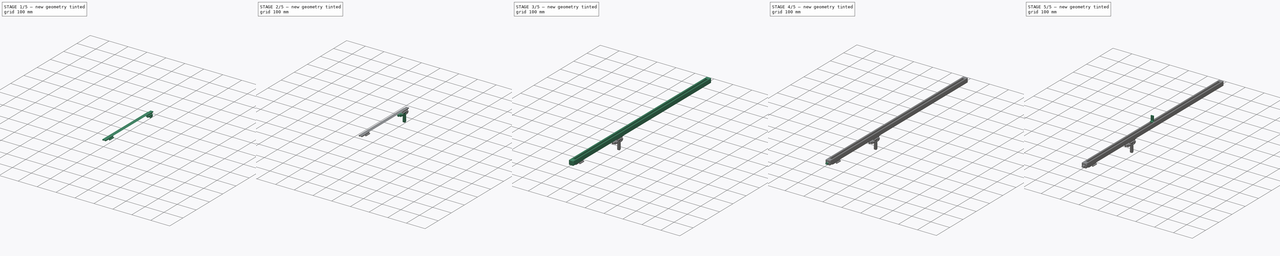
[diagram: build sequence overview — one tinted view per stage of 5, left to right]
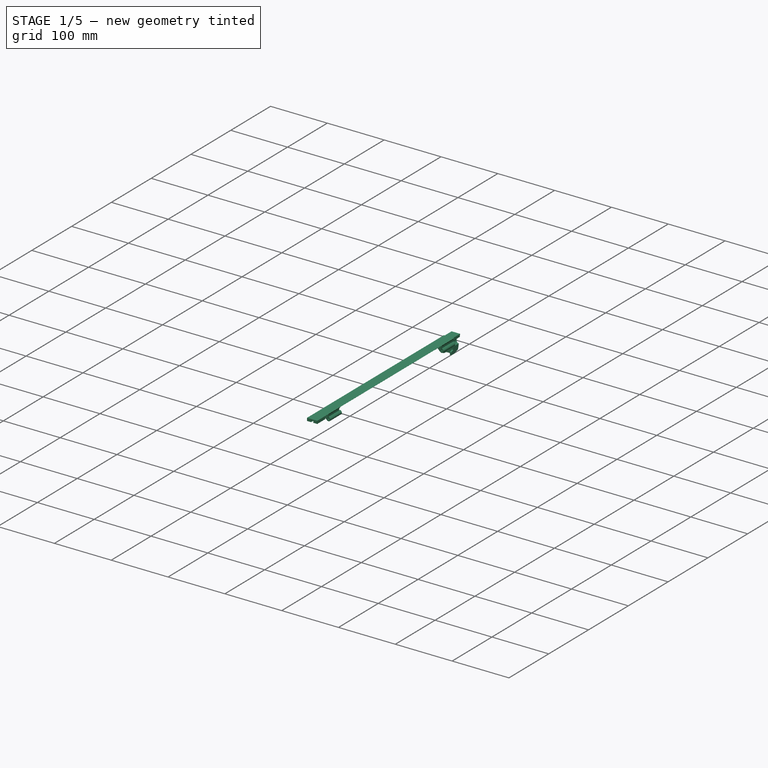
[diagram: stage 1 of 5 — iso view after this stage's code; geometry added in this stage tinted green]
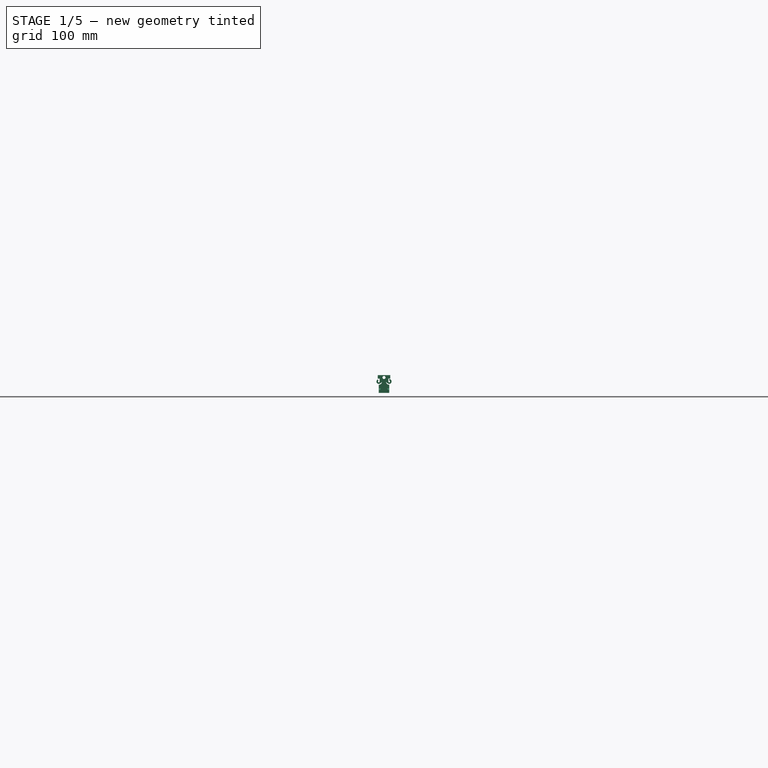
[diagram: stage 1 of 5 — front view after this stage's code; geometry added in this stage tinted green]
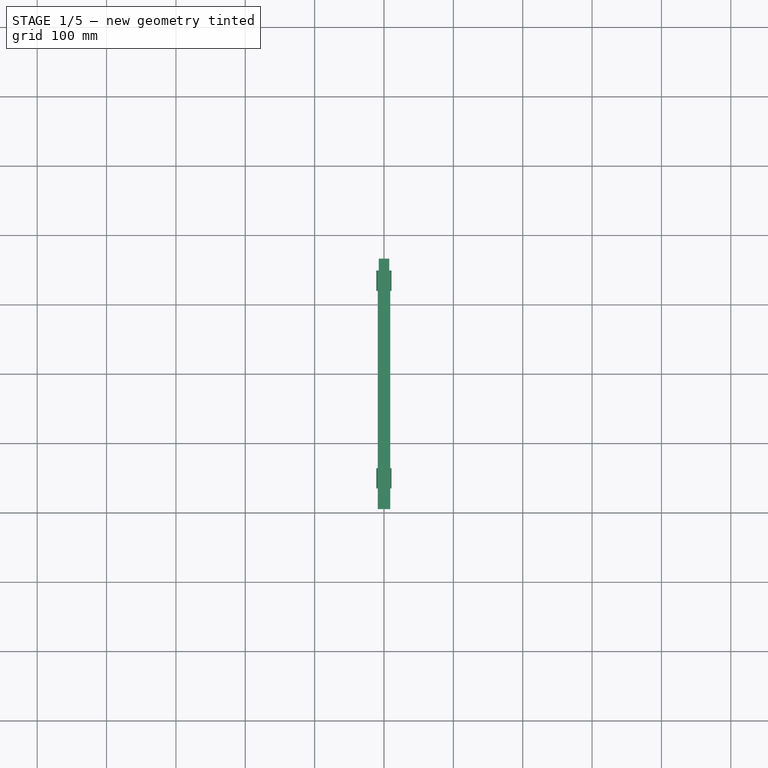
[diagram: stage 1 of 5 — top view after this stage's code; geometry added in this stage tinted green]
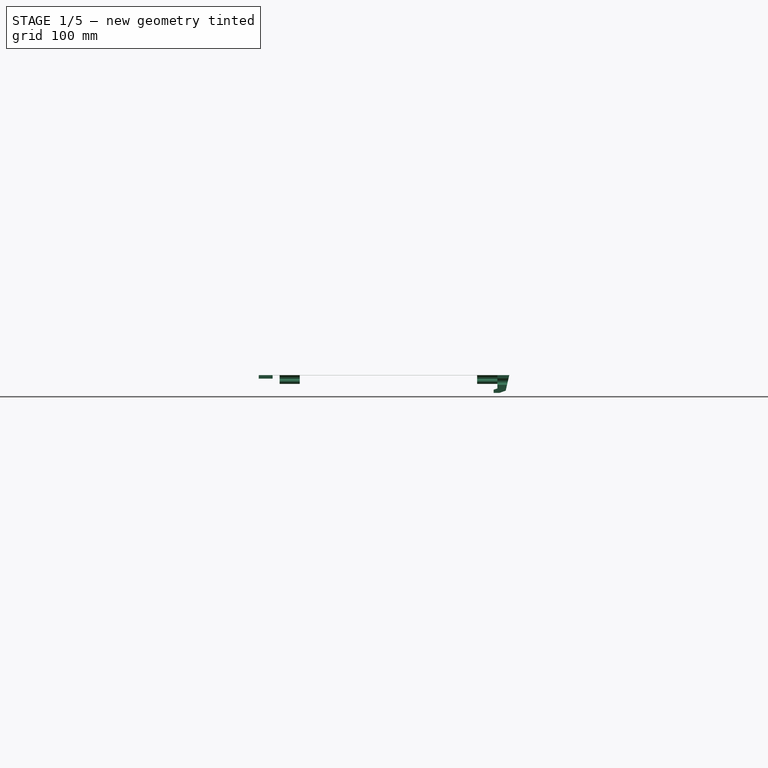
[diagram: stage 1 of 5 — right view after this stage's code; geometry added in this stage tinted green]
FCSTD DOCUMENT  (FreeCAD 0.20R29603 (Git))
Label: body_plastic_v3_rubberband
License: All rights reserved
LicenseURL: http://en.wikipedia.org/wiki/All_rights_reserved
objects: Sketcher::SketchObject×26, PartDesign::Pad×15, PartDesign::Pocket×9, PartDesign::Body×5, PartDesign::Fillet×5, PartDesign::ShapeBinder×4, PartDesign::Chamfer×3, Part::MultiFuse×2, Part::Mirroring×1, PartDesign::FeatureBase×1
note: 103 computed .brp shape members not serialized (recipe doc carries the construction recipe); baked Part::Feature solids carry a one-line shape summary decoded from their .brp

FEATURE [Sketcher::SketchObject] Sketch026  label="skHole"
  FullyConstrained = true
  MapMode = 5
  Placement = pos=(0,0,0) rot=(1,0,0;1.5708rad)
  Support = -> [XZ_Plane007]
  sketch-geometry (1):
    g0: Circle CenterX=0 CenterY=-26.65 CenterZ=0 NormalX=0 NormalY=0 NormalZ=1 AngleXU=0 Radius=2.2
  constraints (3):
    c: PointOnObject(g0,g-2)
    c: Diameter(g0) = 4.4
    c: DistanceY(g-1,g0) = -26.65
FEATURE [Sketcher::SketchObject] Sketch027  label="skVShape"
  AttachmentOffset = pos=(0,0,150.85) rot=(0,0,1;0rad)
  FullyConstrained = true
  MapMode = 5
  Placement = pos=(0,-150.85,-3.35e-14) rot=(1,0,0;1.5708rad)
  Support = -> [XZ_Plane007]
  sketch-geometry (19):
    g0: LineSegment StartX=0 StartY=-30 StartZ=0 EndX=4.24264 EndY=-34.2426 EndZ=0
    g1: LineSegment StartX=0 StartY=-30 StartZ=0 EndX=-4.24264 EndY=-34.2426 EndZ=0
    g2: LineSegment StartX=9 StartY=-23.2 StartZ=0 EndX=-9 EndY=-23.2 EndZ=0
    g3: ArcOfCircle CenterX=-7.5 CenterY=-32.4584 CenterZ=0 NormalX=0 NormalY=0 NormalZ=1 AngleXU=0 Radius=1.25 StartAngle=1.86293 EndAngle=6.29153
    g4: ArcOfCircle CenterX=7.5 CenterY=-32.4584 CenterZ=0 NormalX=0 NormalY=0 NormalZ=1 AngleXU=0 Radius=1.2 StartAngle=3.14159 EndAngle=7.77055
    g5: LineSegment StartX=6.3 StartY=-32.4584 StartZ=0 EndX=6.3 EndY=-26.4584 EndZ=0
    g6: LineSegment StartX=6.3 StartY=-26.4584 StartZ=0 EndX=9 EndY=-23.2 EndZ=0
    g7: LineSegment StartX=-6.25004 StartY=-32.448 StartZ=0 EndX=-6.3 EndY=-26.4584 EndZ=0
    g8: LineSegment StartX=-6.3 StartY=-26.4584 StartZ=0 EndX=-9 EndY=-23.2 EndZ=0
    g9: LineSegment StartX=4.24264 StartY=-34.2426 StartZ=0 EndX=5.43267 EndY=-35.1558 EndZ=0
    g10: LineSegment StartX=-5.43267 StartY=-35.1558 StartZ=0 EndX=-4.24264 EndY=-34.2426 EndZ=0
    g11: ArcOfCircle CenterX=-7.50246 CenterY=-32.4584 CenterZ=0 NormalX=0 NormalY=0 NormalZ=1 AngleXU=0 Radius=3.4 StartAngle=2.16098 EndAngle=5.36689
    g12: ArcOfCircle CenterX=7.50246 CenterY=-32.4584 CenterZ=0 NormalX=0 NormalY=0 NormalZ=1 AngleXU=0 Radius=3.4 StartAngle=4.05789 EndAngle=7.01244
    g13: LineSegment StartX=-7.86 StartY=-31.2613 StartZ=0 EndX=-8.14799 EndY=-30.3037 EndZ=0
    g14: LineSegment StartX=-8.14799 StartY=-30.3037 StartZ=0 EndX=-9.39462 EndY=-29.6335 EndZ=0
    g15: LineSegment StartX=7.6 StartY=-31.2626 StartZ=0 EndX=7.6 EndY=-28.8077 EndZ=0
    g16: LineSegment StartX=7.6 StartY=-28.8077 StartZ=0 EndX=8.8 EndY=-28.8077 EndZ=0
    g17: Circle CenterX=7.6 CenterY=-28.8077 CenterZ=0 NormalX=0 NormalY=0 NormalZ=1 AngleXU=0 Radius=2.5
    g18: LineSegment StartX=8.8 StartY=-28.8077 StartZ=0 EndX=10.0378 EndY=-30.1929 EndZ=0
  constraints (52):
    c: Distance(g0) = 6
    c: Coincident(g1,g0)
    c: Equal(g1,g0)
    c: Perpendicular(g1,g0)
    c: PointOnObject(g0,g-2)
    c: Horizontal(g0,g1)
    c: DistanceY(g-1,g0) = -30
    c: Coincident(g9,g0)
    c: Coincident(g10,g1)
    c: Symmetric(g2,g2,g-2)
    c: Distance(g2) = 18
    c: Distance(g0,g2) = 6.8
    c: Coincident(g6,g2)
    c: Coincident(g8,g2)
    c: Diameter(g3) = 2.5
    c: Tangent(g7,g3) = -1.5708
    c: Tangent(g5,g4) = 1.5708
    c: Symmetric(g4,g3,g-2)
    c: Coincident(g5,g6)
    c: Coincident(g7,g8)
    c: Symmetric(g5,g7,g-2)
    c: Vertical(g5)
    c: Coincident(g3,g13)
    c: Symmetric(g9,g10,g-2)
    c: Coincident(g14,g11)
    c: Coincident(g10,g11)
    c: Distance(g9) = 1.5
    c: Angle(g9,g0) = 3.01069
    c: Distance(g3,g7) = 1.6
    c: Distance(g4,g3) = 15
    c: Coincident(g13,g14)
    c: Perpendicular(g3,g13)
    c: Distance(g13) = 1
    c: Equal(g12,g11)
    c: Diameter(g4) = 2.4
    c: Tangent(g9,g12) = -1.5708
    c: Distance(g5) = 6
    c: Vertical(g15)
    c: Coincident(g15,g16)
    c: Horizontal(g16)
    c: Coincident(g15,g4)
    c: Coincident(g17,g15)
    c: Tangent(g17,g6)
    c: Radius(g17) = 2.5
    c: Coincident(g18,g16)
    c: Radius(g12) = 3.4
    c: Tangent(g18,g12) = 1.5708
    c: Horizontal(g4,g12)
    c: Distance(g16) = 1.2
    c: Distance(g4,g5) = 1.3
    c: Horizontal(g11,g3)
    c: Angle(g14,g13) = 2.35619
FEATURE [PartDesign::Pad] Pad017  label="pdVShape"
  Direction = (0,-1,-2e-16)
  Length = 340
  Length2 = 10
  Placement = pos=(0,0,0) rot=(1,0,0;1.5708rad)
  Profile = -> Sketch027
  ReferenceAxis = -> Sketch027 [N_Axis]
  Type = 0
FEATURE [Sketcher::SketchObject] Sketch028  label="skSplitVShape"
  FullyConstrained = false
  MapMode = 5
  Placement = pos=(0,0,0) rot=(0.57735,0.57735,0.57735;2.0944rad)
  Support = -> [YZ_Plane007]
  sketch-geometry (8):
    g0: LineSegment StartX=-180.11 StartY=-78.5951 StartZ=0 EndX=-435.86 EndY=-78.5951 EndZ=0
    g1: LineSegment StartX=-435.86 StartY=-78.5951 StartZ=0 EndX=-435.86 EndY=-23.45 EndZ=0
    g2: LineSegment StartX=-435.86 StartY=-23.45 StartZ=0 EndX=-180.11 EndY=-23.45 EndZ=0
    g3: LineSegment StartX=-180.11 StartY=-23.45 StartZ=0 EndX=-180.11 EndY=-78.5951 EndZ=0
    g4: LineSegment StartX=-464.86 StartY=-77.7275 StartZ=0 EndX=-530.283 EndY=-77.7275 EndZ=0
    g5: LineSegment StartX=-530.283 StartY=-77.7275 StartZ=0 EndX=-530.283 EndY=-23.45 EndZ=0
    g6: LineSegment StartX=-530.283 StartY=-23.45 StartZ=0 EndX=-464.86 EndY=-23.45 EndZ=0
    g7: LineSegment StartX=-464.86 StartY=-23.45 StartZ=0 EndX=-464.86 EndY=-77.7275 EndZ=0
  constraints (21):
    c: Coincident(g0,g1)
    c: Coincident(g1,g2)
    c: Coincident(g2,g3)
    c: Coincident(g3,g0)
    c: Horizontal(g0)
    c: Horizontal(g2)
    c: Vertical(g1)
    c: Vertical(g3)
    c: Distance(g2) = 255.75
    c: DistanceY(g-1,g2) = -23.45
    c: DistanceX(g-2,g2) = -180.11
    c: Coincident(g4,g5)
    c: Coincident(g5,g6)
    c: Coincident(g6,g7)
    c: Coincident(g7,g4)
    c: Horizontal(g4)
    c: Horizontal(g6)
    c: Vertical(g5)
    c: Vertical(g7)
    c: Horizontal(g6,g1)
    c: Distance(g6,g1) = 29
FEATURE [PartDesign::Pocket] Pocket004  label="pkSplitVShape"
  BaseFeature = -> Pad017
  Direction = (-1,2e-16,-3e-16)
  Length = 26
  Length2 = 5
  Midplane = true
  Placement = pos=(0,0,0) rot=(1,0,0;1.5708rad)
  Profile = -> Sketch028
  ReferenceAxis = -> Sketch028 [N_Axis]
  Type = 0
FEATURE [Sketcher::SketchObject] Sketch031  label="skStopper"
  ExternalGeometry = -> [Pocket004]
  FullyConstrained = false
  MapMode = 5
  Placement = pos=(0,0,0) rot=(0.57735,0.57735,0.57735;2.0944rad)
  Support = -> [YZ_Plane007]
  sketch-geometry (7):
    g0: LineSegment StartX=-156.254 StartY=-44.2669 StartZ=0 EndX=-150.85 EndY=-42.4029 EndZ=0
    g1: LineSegment StartX=-147.958 StartY=-48.8692 StartZ=0 EndX=-156.254 EndY=-48.8692 EndZ=0
    g2: LineSegment StartX=-156.254 StartY=-48.8692 StartZ=0 EndX=-156.254 EndY=-44.2669 EndZ=0
    g3: LineSegment StartX=-138.926 StartY=-45.6486 StartZ=0 EndX=-147.958 EndY=-48.8692 EndZ=0
    g4: LineSegment StartX=-133.706 StartY=-23.2 StartZ=0 EndX=-150.85 EndY=-23.2 EndZ=0
    g5: LineSegment StartX=-150.85 StartY=-42.4029 StartZ=0 EndX=-150.85 EndY=-23.2 EndZ=0
    g6: LineSegment StartX=-138.926 StartY=-45.6486 StartZ=0 EndX=-133.706 EndY=-23.2 EndZ=0
  constraints (13):
    c: Coincident(g3,g1)
    c: Coincident(g1,g2)
    c: Coincident(g2,g0)
    c: Horizontal(g1)
    c: Vertical(g2)
    c: DistanceY(g1) = -48.8692
    c: Coincident(g3,g6)
    c: Horizontal(g4)
    c: Coincident(g0,g5)
    c: Vertical(g5)
    c: Coincident(g6,g4)
    c: Coincident(g5,g4)
    c: Coincident(g4,g-3)
FEATURE [PartDesign::Pad] Pad020  label="pdStopper"
  BaseFeature = -> Pocket004
  Direction = (1,-2e-16,3e-16)
  Length = 15
  Length2 = 10
  Midplane = true
  Placement = pos=(0,0,0) rot=(1,0,0;1.5708rad)
  Profile = -> Sketch031
  ReferenceAxis = -> Sketch031 [N_Axis]
  Type = 0
FEATURE [PartDesign::Body] Body008  label="Rods"
  Group = -> [Sketch029,Pad018,Sketch030,Pad019,Sketch037,Pad023,Sketch038,Pad024,Fillet002]
  Origin = -> Origin008
  Tip = -> Fillet002
FEATURE [Sketcher::SketchObject] Sketch039  label="skStopperBroche"
  AttachmentOffset = pos=(0,0,-41) rot=(0,0,1;0rad)
  ExternalGeometry = -> [Sketch031]
  FullyConstrained = false
  MapMode = 5
  Placement = pos=(0,0,-41) rot=(0,0,1;0rad)
  Support = -> [XY_Plane007]
  sketch-geometry (4):
    g0: LineSegment StartX=4.65 StartY=-150.85 StartZ=0 EndX=-4.65 EndY=-150.85 EndZ=0
    g1: LineSegment StartX=-4.65 StartY=-150.85 StartZ=0 EndX=-5.29758 EndY=-156.297 EndZ=0
    g2: LineSegment StartX=-5.29758 StartY=-156.297 StartZ=0 EndX=5.29758 EndY=-156.297 EndZ=0
    g3: LineSegment StartX=5.29758 StartY=-156.297 StartZ=0 EndX=4.65 EndY=-150.85 EndZ=0
  constraints (8):
    c: Coincident(g0,g1)
    c: Coincident(g1,g2)
    c: Coincident(g2,g3)
    c: Coincident(g3,g0)
    c: Symmetric(g0,g0,g-2)
    c: PointOnObject(g-3,g0)
    c: Distance(g0) = 9.3
    c: Symmetric(g1,g2,g-2)
FEATURE [PartDesign::Pocket] Pocket009  label="pkStopperBroche"
  BaseFeature = -> Pad020
  Direction = (0,0,-1)
  Length = 10
  Length2 = 5
  Placement = pos=(0,0,0) rot=(1,0,0;1.5708rad)
  Profile = -> Sketch039
  ReferenceAxis = -> Sketch039 [N_Axis]
  Type = 0
FEATURE [PartDesign::Pad] Pad021  label="pdHalfFixer"
  BaseFeature = -> Pocket009
  Direction = (0,-1,-2e-16)
  Length = 20
  Length2 = 10
  Placement = pos=(0,0,0) rot=(1,0,0;1.5708rad)
  Profile = -> Sketch032
  ReferenceAxis = -> Sketch032 [N_Axis]
  Type = 0
FEATURE [PartDesign::Pocket] Pocket005  label="pkHole"
  BaseFeature = -> Pad021
  Direction = (0,1,2e-16)
  Length = 5
  Length2 = 5
  Midplane = true
  Placement = pos=(0,0,0) rot=(1,0,0;1.5708rad)
  Profile = -> Sketch026
  ReferenceAxis = -> Sketch026 [N_Axis]
  Type = 1
FEATURE [Sketcher::SketchObject] Sketch040
  ExternalGeometry = -> [Pocket009]
  FullyConstrained = false
  MapMode = 5
  Placement = pos=(0,-150.85,6.7e-14) rot=(-1,0,0;1.5708rad)
  Support = -> [Pocket009]
  sketch-geometry (2):
    g0: Circle CenterX=-7.50246 CenterY=32.4584 CenterZ=0 NormalX=0 NormalY=0 NormalZ=1 AngleXU=0 Radius=4.63805
    g1: Circle CenterX=7.50246 CenterY=32.4584 CenterZ=0 NormalX=0 NormalY=0 NormalZ=1 AngleXU=0 Radius=4.63805
  constraints (3):
    c: Coincident(g0,g-4)
    c: Coincident(g1,g-3)
    c: Equal(g1,g0)
FEATURE [PartDesign::Pocket] Pocket010
  BaseFeature = -> Pocket005
  Direction = (0,-1,4e-16)
  Length = 20
  Length2 = 5
  Placement = pos=(0,0,0) rot=(1,0,0;1.5708rad)
  Profile = -> Sketch040
  ReferenceAxis = -> Sketch040 [N_Axis]
  Refine = true
  Reversed = true
  Type = 0
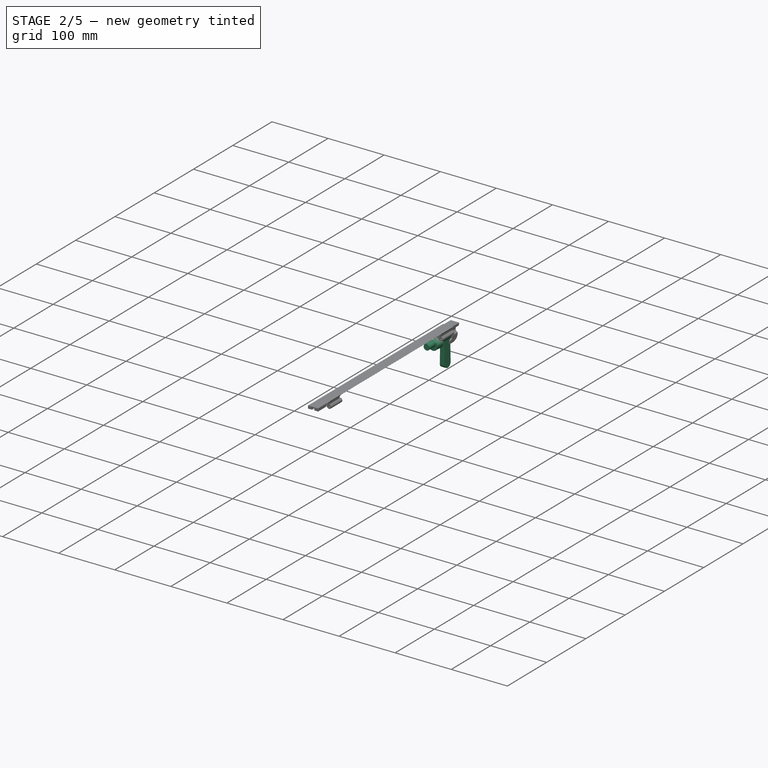
[diagram: stage 2 of 5 — iso view after this stage's code; geometry added in this stage tinted green]
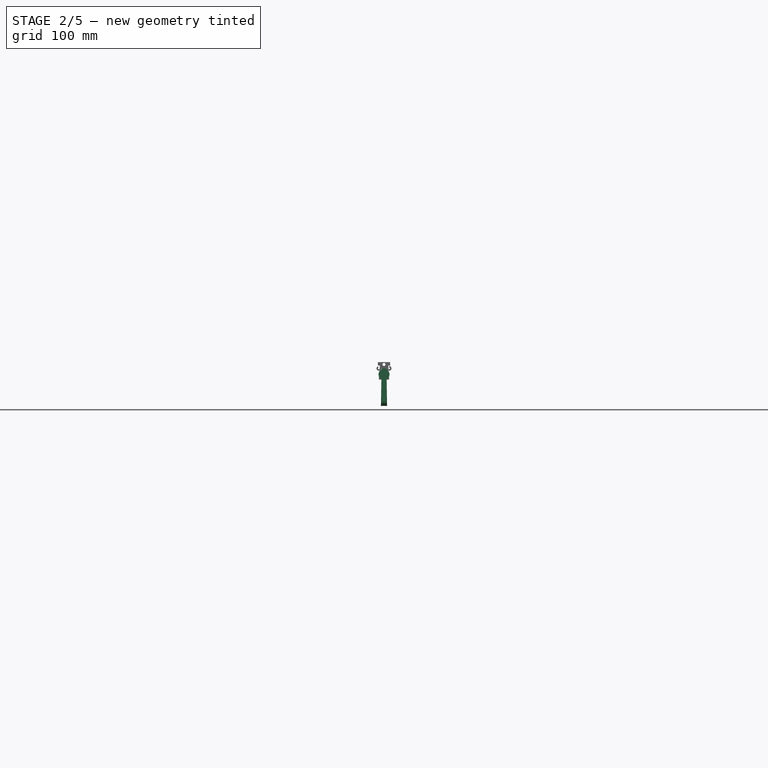
[diagram: stage 2 of 5 — front view after this stage's code; geometry added in this stage tinted green]
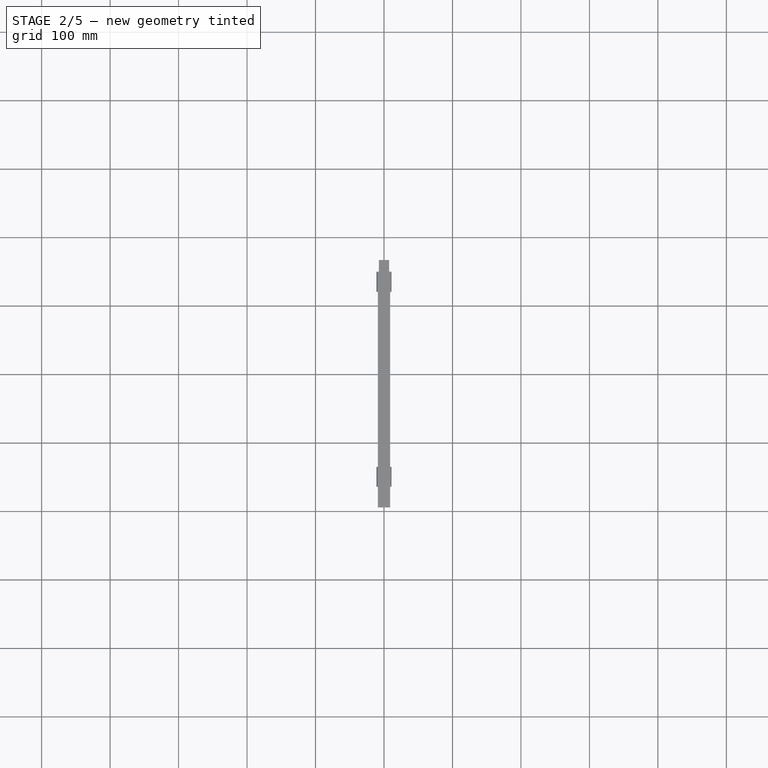
[diagram: stage 2 of 5 — top view after this stage's code; geometry added in this stage tinted green]
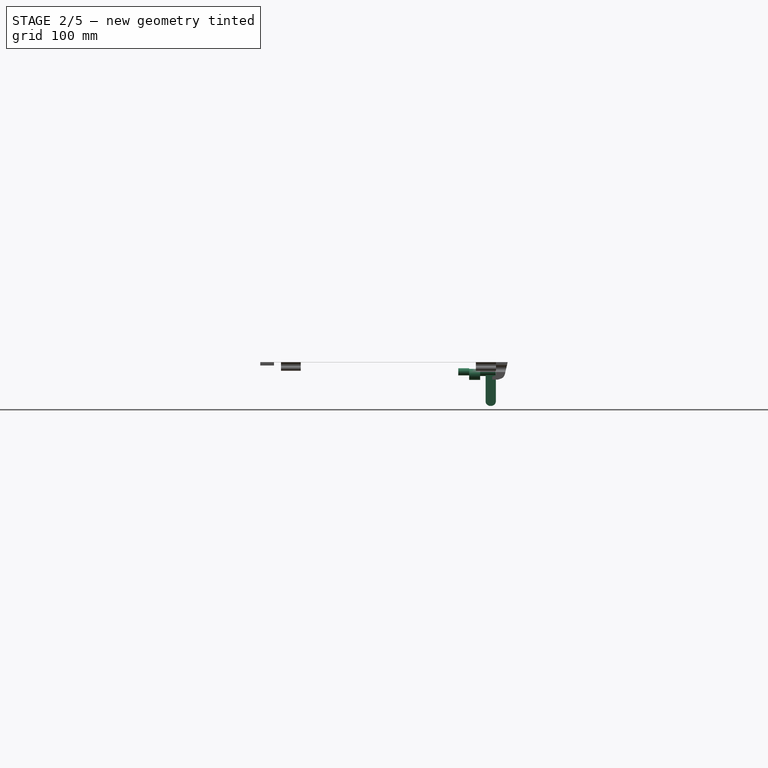
[diagram: stage 2 of 5 — right view after this stage's code; geometry added in this stage tinted green]
FEATURE [Sketcher::SketchObject] Sketch029  label="sk16"
  AttachmentOffset = pos=(0,0,174) rot=(0,0,1;0rad)
  FullyConstrained = false
  MapMode = 5
  Placement = pos=(0,-174,-3.86e-14) rot=(1,0,0;1.5708rad)
  Support = -> [XZ_Plane008]
  sketch-geometry (1):
    g0: Circle CenterX=0 CenterY=-41.1311 CenterZ=0 NormalX=0 NormalY=0 NormalZ=1 AngleXU=0 Radius=8
  constraints (2):
    c: PointOnObject(g0,g-2)
    c: Diameter(g0) = 16
FEATURE [PartDesign::Pad] Pad018
  Direction = (0,-1,-2e-16)
  Length = 16
  Length2 = 10
  Placement = pos=(0,0,0) rot=(1,0,0;1.5708rad)
  Profile = -> Sketch029
  ReferenceAxis = -> Sketch029 [N_Axis]
  Type = 0
FEATURE [Sketcher::SketchObject] Sketch030  label="sk10.5"
  FullyConstrained = false
  MapMode = 5
  Placement = pos=(0,-190,0) rot=(1,0,0;1.5708rad)
  Support = -> [Pad018]
  sketch-geometry (1):
    g0: Circle CenterX=0 CenterY=-37.4369 CenterZ=0 NormalX=0 NormalY=0 NormalZ=1 AngleXU=0 Radius=5.25
  constraints (2):
    c: PointOnObject(g0,g-2)
    c: Diameter(g0) = 10.5
FEATURE [PartDesign::Pad] Pad019
  BaseFeature = -> Pad018
  Direction = (0,-1,2e-16)
  Length = 16
  Length2 = 10
  Placement = pos=(0,0,0) rot=(1,0,0;1.5708rad)
  Profile = -> Sketch030
  ReferenceAxis = -> Sketch030 [N_Axis]
  Type = 0
FEATURE [PartDesign::Body] Body006  label="BodyRod"
  BaseFeature = -> Fusion
  Group = -> [BaseFeature,Sketch023,Sketch024,Pad016,Pocket003,Fillet001,Sketch033,Pad022,Sketch034,Pocket006,Sketch035,Pocket007,Sketch036,Pocket008,Chamfer003]
  Origin = -> Origin006
  Tip = -> Chamfer003
FEATURE [Sketcher::SketchObject] Sketch037
  AttachmentOffset = pos=(0,0,151) rot=(0,0,1;0rad)
  FullyConstrained = true
  MapMode = 5
  Placement = pos=(0,-151,-3.35e-14) rot=(1,0,0;1.5708rad)
  Support = -> [XZ_Plane008]
  sketch-geometry (1):
    g0: Circle CenterX=0 CenterY=-37.92 CenterZ=0 NormalX=0 NormalY=0 NormalZ=1 AngleXU=0 Radius=5.55
  constraints (3):
    c: Diameter(g0) = 11.1
    c: PointOnObject(g0,g-2)
    c: DistanceY(g-1,g0) = -37.92
FEATURE [PartDesign::Pad] Pad023
  BaseFeature = -> Pad019
  Direction = (0,-1,-2e-16)
  Length = 23
  Length2 = 10
  Placement = pos=(0,0,0) rot=(1,0,0;1.5708rad)
  Profile = -> Sketch037
  ReferenceAxis = -> Sketch037 [N_Axis]
  Type = 0
FEATURE [Sketcher::SketchObject] Sketch038
  AttachmentOffset = pos=(0,0,151) rot=(0,0,1;0rad)
  ExternalGeometry = -> [Sketch030]
  FullyConstrained = true
  MapMode = 5
  Placement = pos=(0,-151,-3.35e-14) rot=(1,0,0;1.5708rad)
  Support = -> [XZ_Plane008]
  sketch-geometry (5):
    g0: LineSegment StartX=-3.75 StartY=-41.1111 StartZ=0 EndX=3.75 EndY=-41.1111 EndZ=0
    g1: LineSegment StartX=3.75 StartY=-41.1111 StartZ=0 EndX=4.5 EndY=-87.1869 EndZ=0
    g2: LineSegment StartX=4.5 StartY=-87.1869 StartZ=0 EndX=-4.5 EndY=-87.1869 EndZ=0
    g3: LineSegment StartX=-4.5 StartY=-87.1869 StartZ=0 EndX=-3.75 EndY=-41.1111 EndZ=0
    g4: GeomPoint X=0 Y=-32.1869 Z=0
  constraints (13):
    c: Coincident(g0,g1)
    c: Coincident(g1,g2)
    c: Coincident(g2,g3)
    c: Coincident(g3,g0)
    c: Horizontal(g0)
    c: PointOnObject(g0,g-3)
    c: PointOnObject(g0,g-3)
    c: PointOnObject(g4,g-3)
    c: PointOnObject(g4,g-2)
    c: Distance(g4,g2) = 55
    c: Distance(g2) = 9
    c: Distance(g0) = 7.5
    c: Symmetric(g1,g2,g-2)
FEATURE [PartDesign::Pad] Pad024
  BaseFeature = -> Pad023
  Direction = (0,-1,-2e-16)
  Length = 15
  Length2 = 10
  Placement = pos=(0,0,0) rot=(1,0,0;1.5708rad)
  Profile = -> Sketch038
  ReferenceAxis = -> Sketch038 [N_Axis]
  Refine = true
  Type = 0
FEATURE [PartDesign::Fillet] Fillet002
  Base = -> Pad024 [Edge29,Edge25]
  BaseFeature = -> Pad024
  Placement = pos=(0,0,0) rot=(1,0,0;1.5708rad)
  Radius = 7
  SupportTransform = false
  UseAllEdges = false
FEATURE [PartDesign::Fillet] Fillet003
  Base = -> Pocket010 [Edge151,Edge147,Edge146,Edge139]
  BaseFeature = -> Pocket010
  Placement = pos=(0,0,0) rot=(1,0,0;1.5708rad)
  Radius = 1
  SupportTransform = false
  UseAllEdges = false
FEATURE [PartDesign::Fillet] Fillet004
  Base = -> Fillet003 [Edge32]
  BaseFeature = -> Fillet003
  Placement = pos=(0,0,0) rot=(1,0,0;1.5708rad)
  Radius = 9
  SupportTransform = false
  UseAllEdges = false
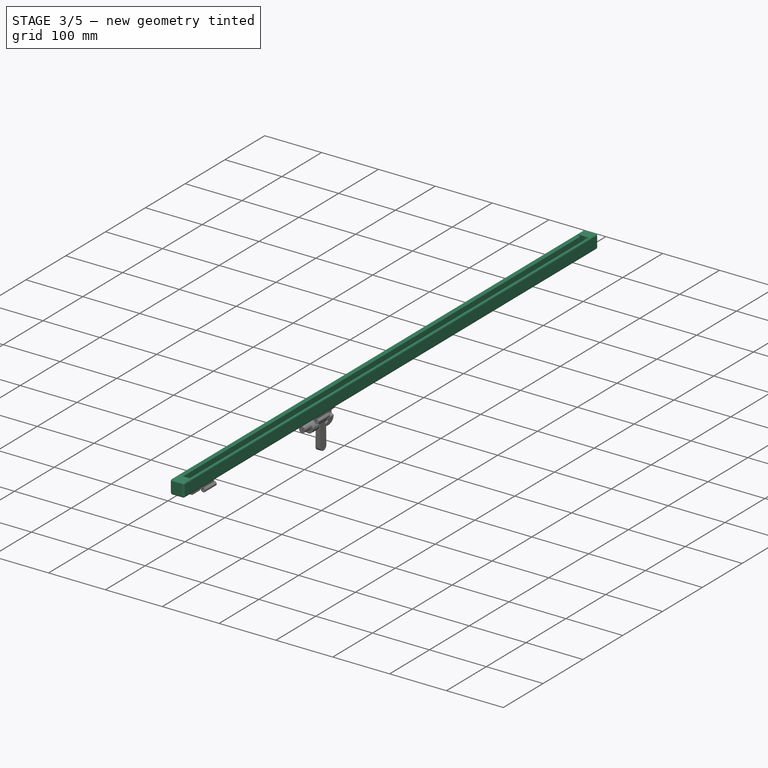
[diagram: stage 3 of 5 — iso view after this stage's code; geometry added in this stage tinted green]
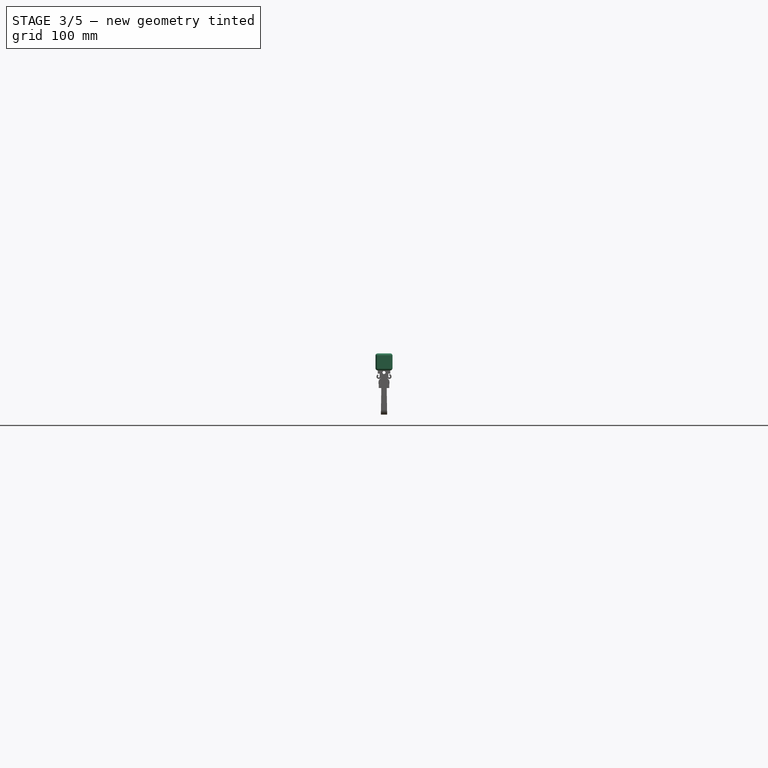
[diagram: stage 3 of 5 — front view after this stage's code; geometry added in this stage tinted green]
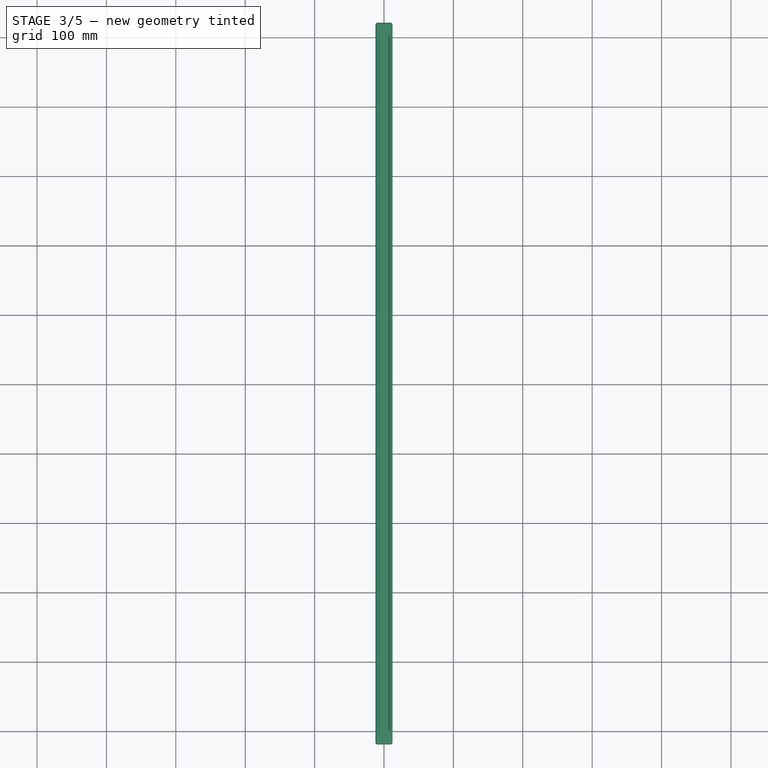
[diagram: stage 3 of 5 — top view after this stage's code; geometry added in this stage tinted green]
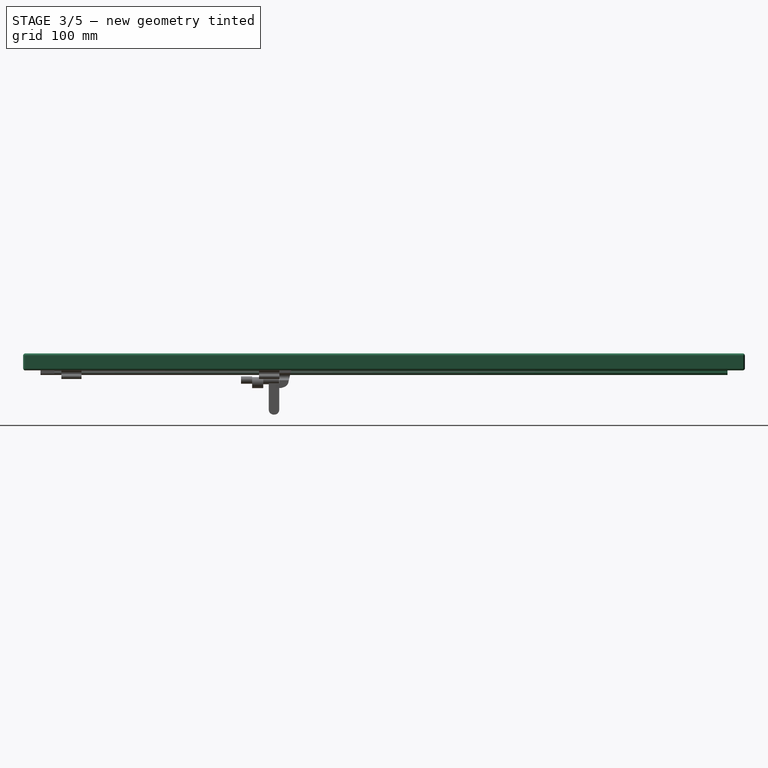
[diagram: stage 3 of 5 — right view after this stage's code; geometry added in this stage tinted green]
FEATURE [Sketcher::SketchObject] Sketch  label="skStrip"
  FullyConstrained = true
  MapMode = 3
  Placement = pos=(0,0,0) rot=(1,0,0;1.5708rad)
  sketch-geometry (6):
    g0: LineSegment StartX=-6 StartY=-3.5 StartZ=0 EndX=6 EndY=-3.5 EndZ=0
    g1: LineSegment StartX=6 StartY=-3.5 StartZ=0 EndX=6 EndY=-2.8 EndZ=0
    g2: LineSegment StartX=6 StartY=-2.8 StartZ=0 EndX=-6 EndY=-2.8 EndZ=0
    g3: LineSegment StartX=-6 StartY=-2.8 StartZ=0 EndX=-6 EndY=-3.5 EndZ=0
    g4: ArcOfCircle CenterX=4e-16 CenterY=-7.82857 CenterZ=0 NormalX=0 NormalY=0 NormalZ=1 AngleXU=0 Radius=7.82857 StartAngle=0.697542 EndAngle=2.44405
    g5: GeomPoint X=0 Y=0 Z=0
  constraints (15):
    c: Coincident(g0,g1)
    c: Coincident(g1,g2)
    c: Coincident(g2,g3)
    c: Coincident(g3,g0)
    c: Horizontal(g0)
    c: Vertical(g1)
    c: Vertical(g3)
    c: Symmetric(g2,g1,g-2)
    c: Distance(g2) = 12
    c: Coincident(g4,g1)
    c: Coincident(g4,g2)
    c: PointOnObject(g5,g4)
    c: Distance(g1) = 0.7
    c: Distance(g5,g0) = 3.5
    c: Coincident(g5,g-1)
FEATURE [Sketcher::SketchObject] Sketch015  label="skAluProfile"
  ExternalGeometry = -> [Sketch]
  FullyConstrained = true
  Placement = pos=(0,0,0) rot=(1,0,0;1.5708rad)
  sketch-geometry (9):
    g0: LineSegment StartX=-7.75 StartY=-3.5 StartZ=0 EndX=7.75 EndY=-3.5 EndZ=0
    g1: LineSegment StartX=7.75 StartY=-3.5 StartZ=0 EndX=7.75 EndY=-19 EndZ=0
    g2: LineSegment StartX=-7.75 StartY=-19 StartZ=0 EndX=-7.75 EndY=-3.5 EndZ=0
    g3: LineSegment StartX=7.75 StartY=-19 StartZ=0 EndX=6.25 EndY=-19 EndZ=0
    g4: LineSegment StartX=6.25 StartY=-19 StartZ=0 EndX=6.25 EndY=-5 EndZ=0
    g5: LineSegment StartX=6.25 StartY=-5 StartZ=0 EndX=-6.25 EndY=-5 EndZ=0
    g6: LineSegment StartX=-6.25 StartY=-5 StartZ=0 EndX=-6.25 EndY=-19 EndZ=0
    g7: LineSegment StartX=-6.25 StartY=-19 StartZ=0 EndX=-7.75 EndY=-19 EndZ=0
    g8: LineSegment StartX=6.25 StartY=-5 StartZ=0 EndX=6.25 EndY=-3.5 EndZ=0
  constraints (26):
    c: Coincident(g0,g1)
    c: Coincident(g2,g0)
    c: Vertical(g1)
    c: Vertical(g2)
    c: Coincident(g3,g1)
    c: Horizontal(g3)
    c: Coincident(g3,g4)
    c: Vertical(g4)
    c: Coincident(g4,g5)
    c: Horizontal(g5)
    c: Coincident(g5,g6)
    c: Vertical(g6)
    c: Coincident(g6,g7)
    c: Coincident(g7,g2)
    c: Horizontal(g6,g3)
    c: Horizontal(g7)
    c: Equal(g7,g3)
    c: Distance(g0) = 15.5
    c: Distance(g3) = 1.5
    c: Symmetric(g0,g0,g-2)
    c: Coincident(g8,g4)
    c: PointOnObject(g8,g0)
    c: Vertical(g8)
    c: Equal(g8,g3)
    c: PointOnObject(g-3,g0)
    c: Equal(g1,g0)
FEATURE [PartDesign::ShapeBinder] ShapeBinder002  label="sbAluProfile"
  Placement = pos=(0,0,0) rot=(1,0,0;1.5708rad)
  Support = -> [Sketch015]
  TraceSupport = false
FEATURE [PartDesign::ShapeBinder] ShapeBinder003  label="sbStrip"
  Placement = pos=(0,0,0) rot=(1,0,0;1.5708rad)
  Support = -> [Sketch]
  TraceSupport = false
FEATURE [Sketcher::SketchObject] Sketch016  label="skProfileBase"
  ExternalGeometry = -> [ShapeBinder002,ShapeBinder003]
  FullyConstrained = true
  MapMode = 5
  Placement = pos=(0,0,0) rot=(1,0,0;1.5708rad)
  Support = -> [XZ_Plane003]
  sketch-geometry (25):
    g0: ArcOfCircle CenterX=-9.2 CenterY=-2.05 CenterZ=0 NormalX=0 NormalY=0 NormalZ=1 AngleXU=0 Radius=3 StartAngle=1.5708 EndAngle=3.14159
    g1: ArcOfCircle CenterX=9.2 CenterY=-2.05 CenterZ=0 NormalX=0 NormalY=0 NormalZ=1 AngleXU=0 Radius=3 StartAngle=2e-16 EndAngle=1.5708
    g2: LineSegment StartX=12.2 StartY=-2.05 StartZ=0 EndX=12.2 EndY=-20.45 EndZ=0
    g3: ArcOfCircle CenterX=-9.2 CenterY=-20.45 CenterZ=0 NormalX=0 NormalY=0 NormalZ=1 AngleXU=0 Radius=3 StartAngle=3.14159 EndAngle=4.71239
    g4: LineSegment StartX=-12.2 StartY=-20.45 StartZ=0 EndX=-12.2 EndY=-2.05 EndZ=0
    g5: GeomPoint X=-12.2 Y=0 Z=0
    g6: LineSegment StartX=-8.2 StartY=-3.05 StartZ=0 EndX=-8.2 EndY=-19.45 EndZ=0
    g7: LineSegment StartX=-8.2 StartY=-19.45 StartZ=0 EndX=8.2 EndY=-19.45 EndZ=0
    g8: LineSegment StartX=8.2 StartY=-19.45 StartZ=0 EndX=8.2 EndY=-3.05 EndZ=0
    g9: Circle CenterX=7.75 CenterY=-19 CenterZ=0 NormalX=0 NormalY=0 NormalZ=1 AngleXU=0 Radius=0.45
    g10: Circle CenterX=6.25 CenterY=-19 CenterZ=0 NormalX=0 NormalY=0 NormalZ=1 AngleXU=0 Radius=0.45
    g11: LineSegment StartX=-8.2 StartY=-3.05 StartZ=0 EndX=-6.91634 EndY=-3.05 EndZ=0
    g12: Circle CenterX=7.75 CenterY=-3.5 CenterZ=0 NormalX=0 NormalY=0 NormalZ=1 AngleXU=0 Radius=0.45
    g13: LineSegment StartX=9.2 StartY=-23.45 StartZ=0 EndX=-9.2 EndY=-23.45 EndZ=0
    g14: ArcOfCircle CenterX=9.2 CenterY=-20.45 CenterZ=0 NormalX=0 NormalY=0 NormalZ=1 AngleXU=0 Radius=3 StartAngle=4.71239 EndAngle=6.28319
    g15: LineSegment StartX=8.2 StartY=-19.45 StartZ=0 EndX=12.2 EndY=-19.45 EndZ=0
    g16: LineSegment StartX=8.2 StartY=-19.45 StartZ=0 EndX=8.2 EndY=-23.45 EndZ=0
    g17: LineSegment StartX=8.2 StartY=-3.05 StartZ=0 EndX=8.2 EndY=0.95 EndZ=0
    g18: LineSegment StartX=8.2 StartY=-3.05 StartZ=0 EndX=6.91634 EndY=-3.05 EndZ=0
    g19: LineSegment StartX=6.91634 StartY=-3.05 StartZ=0 EndX=6.11895 EndY=-2.29226 EndZ=0
    g20: LineSegment StartX=6.11895 StartY=-2.29226 StartZ=0 EndX=9.2 EndY=0.95 EndZ=0
    g21: LineSegment StartX=8.2 StartY=0.95 StartZ=0 EndX=9.2 EndY=0.95 EndZ=0
    g22: Circle CenterX=6 CenterY=-2.8 CenterZ=0 NormalX=0 NormalY=0 NormalZ=1 AngleXU=0 Radius=0.45
    g23: LineSegment StartX=-6.91634 StartY=-3.05 StartZ=0 EndX=-6.11895 EndY=-2.29226 EndZ=0
    g24: LineSegment StartX=-9.2 StartY=0.95 StartZ=0 EndX=-6.11895 EndY=-2.29226 EndZ=0
  constraints (61):
    c: Tangent(g1,g2) = 1.5708
    c: Tangent(g3,g4) = 1.5708
    c: Tangent(g4,g0) = 1.5708
    c: Vertical(g2)
    c: Vertical(g4)
    c: Equal(g0,g1)
    c: PointOnObject(g5,g4)
    c: PointOnObject(g5,g-1)
    c: Vertical(g6)
    c: Coincident(g7,g8)
    c: Vertical(g8)
    c: Symmetric(g6,g8,g-2)
    c: Tangent(g7,g9)
    c: Equal(g10,g9)
    c: Coincident(g10,g-5)
    c: Coincident(g9,g-3)
    c: Horizontal(g7)
    c: Tangent(g9,g8)
    c: Coincident(g11,g6)
    c: Horizontal(g11)
    c: Coincident(g12,g-7)
    c: Tangent(g13,g3) = 1.5708
    c: Horizontal(g13)
    c: Tangent(g14,g2) = 1.5708
    c: Tangent(g14,g13) = 1.5708
    c: Equal(g0,g3)
    c: Coincident(g15,g7)
    c: PointOnObject(g15,g2)
    c: Horizontal(g15)
    c: Distance(g15) = 4
    c: Symmetric(g14,g3,g-2)
    c: Radius(g1) = 3
    c: Coincident(g16,g7)
    c: PointOnObject(g16,g13)
    c: Vertical(g16)
    c: Equal(g15,g16)
    c: Coincident(g7,g6)
    c: Radius(g12) = 0.45
    c: Tangent(g8,g12)
    c: Coincident(g17,g8)
    c: Vertical(g17)
    c: Equal(g17,g15)
    c: Coincident(g18,g8)
    c: Coincident(g18,g19)
    c: Coincident(g19,g20)
    c: Coincident(g20,g1)
    c: Tangent(g18,g12)
    c: Horizontal(g1,g17)
    c: Distance(g19) = 1.1
    c: Coincident(g21,g17)
    c: Tangent(g21,g1) = 1.5708
    c: Coincident(g22,g-6)
    c: Equal(g12,g22)
    c: Tangent(g22,g19)
    c: Coincident(g23,g11)
    c: Coincident(g24,g23)
    c: Coincident(g24,g0)
    c: Symmetric(g0,g1,g-2)
    c: Symmetric(g18,g11,g-2)
    c: Symmetric(g19,g23,g-2)
    c: Perpendicular(g20,g19)
FEATURE [PartDesign::Pad] Pad008  label="pdProfileBase"
  Direction = (0,-1,-2e-16)
  Length = 501
  Length2 = 10
  Placement = pos=(0,0,0) rot=(1,0,0;1.5708rad)
  Profile = -> Sketch016
  ReferenceAxis = -> Sketch016 [N_Axis]
  Type = 0
FEATURE [PartDesign::Body] Body  label="StripPlacer"
  Group = -> [ShapeBinder,ShapeBinder004,Sketch017,Pad,Chamfer,Sketch018,Pad009,Chamfer001]
  Origin = -> Origin
  Tip = -> Chamfer001
FEATURE [Sketcher::SketchObject] Sketch019  label="skSideRods"
  ExternalGeometry = -> [ShapeBinder002]
  FullyConstrained = false
  MapMode = 5
  Placement = pos=(0,0,0) rot=(1,0,0;1.5708rad)
  Support = -> [XZ_Plane003]
  sketch-geometry (10):
    g0: Circle CenterX=7e-16 CenterY=-26.65 CenterZ=0 NormalX=0 NormalY=0 NormalZ=1 AngleXU=0 Radius=2.2
    g1: Circle CenterX=0 CenterY=-19.225 CenterZ=0 NormalX=0 NormalY=0 NormalZ=1 AngleXU=0 Radius=0.225
    g2: GeomPoint X=0 Y=-19.45 Z=0
    g3: LineSegment StartX=6.25 StartY=-19 StartZ=0 EndX=-1.91759 EndY=-19 EndZ=0
    g4: GeomPoint X=0 Y=-23.45 Z=0
    g5: ArcOfCircle CenterX=7e-16 CenterY=-26.65 CenterZ=0 NormalX=0 NormalY=0 NormalZ=1 AngleXU=0 Radius=3.5 StartAngle=2.69057 EndAngle=6.73421
    g6: GeomPoint X=0 Y=-24.45 Z=0
    g7: LineSegment StartX=3.15 StartY=-25.1244 StartZ=0 EndX=3.5 EndY=-23.45 EndZ=0
    g8: LineSegment StartX=-3.15 StartY=-25.1244 StartZ=0 EndX=-3.5 EndY=-23.45 EndZ=0
    g9: LineSegment StartX=-3.5 StartY=-23.45 StartZ=0 EndX=3.5 EndY=-23.45 EndZ=0
  constraints (25):
    c: Diameter(g0) = 4.4
    c: PointOnObject(g1,g-2)
    c: Diameter(g1) = 0.45
    c: PointOnObject(g2,g1)
    c: PointOnObject(g2,g-2)
    c: Horizontal(g3)
    c: Coincident(g3,g-3)
    c: Tangent(g3,g1)
    c: PointOnObject(g4,g-2)
    c: Distance(g4,g2) = 4
    c: Diameter(g5) = 7
    c: Coincident(g5,g0)
    c: PointOnObject(g6,g0)
    c: PointOnObject(g6,g-2)
    c: Distance(g6,g4) = 1
    c: Coincident(g7,g5)
    c: Coincident(g8,g5)
    c: Coincident(g9,g8)
    c: Coincident(g9,g7)
    c: PointOnObject(g4,g9)
    c: Symmetric(g7,g8,g-2)
    c: Symmetric(g5,g5,g-2)
    c: Distance(g5,g5) = 6.3
    c: Distance(g7,g8) = 7
    c: Distance(g-1,g0) = 26.65  'Distance to Origin'
FEATURE [PartDesign::Pad] Pad010  label="pdSideRods"
  BaseFeature = -> Pad008
  Direction = (0,-1,-2e-16)
  Length = 495
  Length2 = 10
  Placement = pos=(0,0,0) rot=(1,0,0;1.5708rad)
  Profile = -> Sketch019
  ReferenceAxis = -> Sketch019 [N_Axis]
  Refine = true
  Type = 0
FEATURE [Sketcher::SketchObject] Sketch020  label="skEndCavity"
  AttachmentOffset = pos=(0,0,501) rot=(0,0,1;0rad)
  ExternalGeometry = -> [ShapeBinder002,ShapeBinder003]
  FullyConstrained = true
  MapMode = 5
  Placement = pos=(0,-501,-1.112e-13) rot=(1,0,0;1.5708rad)
  Support = -> [XZ_Plane003]
  sketch-geometry (17):
    g0: ArcOfCircle CenterX=-9.2 CenterY=-2.05 CenterZ=0 NormalX=0 NormalY=0 NormalZ=1 AngleXU=0 Radius=3 StartAngle=1.5708 EndAngle=3.14159
    g1: LineSegment StartX=-9.2 StartY=0.95 StartZ=0 EndX=9.2 EndY=0.95 EndZ=0
    g2: ArcOfCircle CenterX=9.2 CenterY=-2.05 CenterZ=0 NormalX=0 NormalY=0 NormalZ=1 AngleXU=0 Radius=3 StartAngle=1e-16 EndAngle=1.5708
    g3: LineSegment StartX=12.2 StartY=-2.05 StartZ=0 EndX=12.2 EndY=-20.45 EndZ=0
    g4: ArcOfCircle CenterX=9.2 CenterY=-20.45 CenterZ=0 NormalX=0 NormalY=0 NormalZ=1 AngleXU=0 Radius=3 StartAngle=4.71239 EndAngle=6.28319
    g5: LineSegment StartX=9.2 StartY=-23.45 StartZ=0 EndX=-9.2 EndY=-23.45 EndZ=0
    g6: ArcOfCircle CenterX=-9.2 CenterY=-20.45 CenterZ=0 NormalX=0 NormalY=0 NormalZ=1 AngleXU=0 Radius=3 StartAngle=3.14159 EndAngle=4.71239
    g7: LineSegment StartX=-12.2 StartY=-20.45 StartZ=0 EndX=-12.2 EndY=-2.05 EndZ=0
    g8: GeomPoint X=-12.2 Y=0.95 Z=0
    g9: GeomPoint X=12.2 Y=-23.45 Z=0
    g10: LineSegment StartX=7.75 StartY=-19 StartZ=0 EndX=12.2 EndY=-19 EndZ=0
    g11: LineSegment StartX=7.75 StartY=-19 StartZ=0 EndX=7.75 EndY=-23.45 EndZ=0
    g12: LineSegment StartX=-6.95 StartY=0 StartZ=0 EndX=6.95 EndY=0 EndZ=0
    g13: LineSegment StartX=6.95 StartY=0 StartZ=0 EndX=6.95 EndY=-18.2 EndZ=0
    g14: LineSegment StartX=6.95 StartY=-18.2 StartZ=0 EndX=-6.95 EndY=-18.2 EndZ=0
    g15: LineSegment StartX=-6.95 StartY=-18.2 StartZ=0 EndX=-6.95 EndY=0 EndZ=0
    g16: LineSegment StartX=6.95 StartY=-18.2 StartZ=0 EndX=7.75 EndY=-19 EndZ=0
  constraints (42):
    c: Tangent(g0,g1) = 1.5708
    c: Tangent(g1,g2) = 1.5708
    c: Tangent(g2,g3) = 1.5708
    c: Tangent(g3,g4) = 1.5708
    c: Tangent(g4,g5) = 1.5708
    c: Tangent(g5,g6) = 1.5708
    c: Tangent(g6,g7) = 1.5708
    c: Tangent(g7,g0) = 1.5708
    c: Horizontal(g1)
    c: Horizontal(g5)
    c: Vertical(g3)
    c: Vertical(g7)
    c: Equal(g0,g2)
    c: Equal(g2,g4)
    c: PointOnObject(g8,g1)
    c: PointOnObject(g8,g7)
    c: PointOnObject(g9,g3)
    c: PointOnObject(g9,g5)
    c: Radius(g2) = 3
    c: Distance(g-3,g3) = 4.45
    c: Symmetric(g4,g6,g-2)
    c: Coincident(g10,g-3)
    c: PointOnObject(g10,g3)
    c: Horizontal(g10)
    c: Coincident(g11,g10)
    c: PointOnObject(g11,g5)
    c: Vertical(g11)
    c: Equal(g11,g10)
    c: Coincident(g12,g13)
    c: Coincident(g13,g14)
    c: Coincident(g14,g15)
    c: Coincident(g15,g12)
    c: Horizontal(g12)
    c: Vertical(g13)
    c: Vertical(g15)
    c: Symmetric(g13,g14,g-2)
    c: Coincident(g16,g13)
    c: Coincident(g16,g10)
    c: Angle(g-3,g16) = 0.785398
    c: Distance(g13,g-3) = 0.8
    c: DistanceY(g-3,g1) = 4.45
    c: PointOnObject(g12,g-1)
FEATURE [PartDesign::Pad] Pad011  label="pdEndCavity"
  BaseFeature = -> Pad010
  Direction = (0,-1,-2e-16)
  Length = 15
  Length2 = 10
  Placement = pos=(0,0,0) rot=(1,0,0;1.5708rad)
  Profile = -> Sketch020
  ReferenceAxis = -> Sketch020 [N_Axis]
  Type = 0
FEATURE [Sketcher::SketchObject] Sketch021  label="skEndCap"
  AttachmentOffset = pos=(0,0,516) rot=(0,0,1;0rad)
  ExternalGeometry = -> [ShapeBinder003,ShapeBinder002]
  FullyConstrained = true
  MapMode = 5
  Placement = pos=(0,-516,-1.146e-13) rot=(1,0,0;1.5708rad)
  Support = -> [XZ_Plane003]
  sketch-geometry (12):
    g0: ArcOfCircle CenterX=-9.2 CenterY=-2.05 CenterZ=0 NormalX=0 NormalY=0 NormalZ=1 AngleXU=0 Radius=3 StartAngle=1.5708 EndAngle=3.14159
    g1: LineSegment StartX=-9.2 StartY=0.95 StartZ=0 EndX=9.2 EndY=0.95 EndZ=0
    g2: ArcOfCircle CenterX=9.2 CenterY=-2.05 CenterZ=0 NormalX=0 NormalY=0 NormalZ=1 AngleXU=0 Radius=3 StartAngle=1e-16 EndAngle=1.5708
    g3: LineSegment StartX=12.2 StartY=-2.05 StartZ=0 EndX=12.2 EndY=-20.45 EndZ=0
    g4: ArcOfCircle CenterX=9.2 CenterY=-20.45 CenterZ=0 NormalX=0 NormalY=0 NormalZ=1 AngleXU=0 Radius=3 StartAngle=4.71239 EndAngle=6.28319
    g5: LineSegment StartX=9.2 StartY=-23.45 StartZ=0 EndX=-9.2 EndY=-23.45 EndZ=0
    g6: ArcOfCircle CenterX=-9.2 CenterY=-20.45 CenterZ=0 NormalX=0 NormalY=0 NormalZ=1 AngleXU=0 Radius=3 StartAngle=3.14159 EndAngle=4.71239
    g7: LineSegment StartX=-12.2 StartY=-20.45 StartZ=0 EndX=-12.2 EndY=-2.05 EndZ=0
    g8: GeomPoint X=-12.2 Y=0.95 Z=0
    g9: GeomPoint X=12.2 Y=-23.45 Z=0
    g10: LineSegment StartX=7.75 StartY=-23.45 StartZ=0 EndX=7.75 EndY=-19 EndZ=0
    g11: LineSegment StartX=7.75 StartY=-19 StartZ=0 EndX=12.2 EndY=-19 EndZ=0
  constraints (29):
    c: Tangent(g0,g1) = 1.5708
    c: Tangent(g1,g2) = 1.5708
    c: Tangent(g2,g3) = 1.5708
    c: Tangent(g3,g4) = 1.5708
    c: Tangent(g4,g5) = 1.5708
    c: Tangent(g5,g6) = 1.5708
    c: Tangent(g6,g7) = 1.5708
    c: Tangent(g7,g0) = 1.5708
    c: Horizontal(g1)
    c: Horizontal(g5)
    c: Vertical(g3)
    c: Vertical(g7)
    c: Equal(g0,g2)
    c: Equal(g2,g4)
    c: PointOnObject(g8,g1)
    c: PointOnObject(g8,g7)
    c: PointOnObject(g9,g3)
    c: PointOnObject(g9,g5)
    c: Radius(g2) = 3
    c: PointOnObject(g10,g5)
    c: Coincident(g10,g-4)
    c: Vertical(g10)
    c: Coincident(g11,g10)
    c: PointOnObject(g11,g3)
    c: Horizontal(g11)
    c: Equal(g10,g11)
    c: Distance(g11) = 4.45
    c: Symmetric(g4,g6,g-2)
    c: DistanceY(g-4,g1) = 4.45
FEATURE [PartDesign::Pad] Pad012  label="pdEndCap"
  BaseFeature = -> Pad011
  Direction = (0,-1,-2e-16)
  Length = 4
  Length2 = 10
  Placement = pos=(0,0,0) rot=(1,0,0;1.5708rad)
  Profile = -> Sketch021
  ReferenceAxis = -> Sketch021 [N_Axis]
  Type = 0
FEATURE [Sketcher::SketchObject] Sketch022  label="skNuts"
  AttachmentOffset = pos=(0,0,495) rot=(0,0,1;0rad)
  FullyConstrained = true
  MapMode = 5
  Placement = pos=(0,-495,-1.099e-13) rot=(1,0,0;1.5708rad)
  Support = -> [XZ_Plane003]
  sketch-geometry (1):
    g0: Circle CenterX=0 CenterY=-26.65 CenterZ=0 NormalX=0 NormalY=0 NormalZ=1 AngleXU=0 Radius=4.5
  constraints (3):
    c: PointOnObject(g0,g-2)
    c: Diameter(g0) = 9
    c: Distance(g0,g-1) = 26.65
FEATURE [PartDesign::Pocket] Pocket  label="pkNuts"
  BaseFeature = -> Pad012
  Direction = (0,1,2e-16)
  Length = 15
  Length2 = 5
  Placement = pos=(0,0,0) rot=(1,0,0;1.5708rad)
  Profile = -> Sketch022
  ReferenceAxis = -> Sketch022 [N_Axis]
  Refine = true
  Reversed = true
  Type = 0
FEATURE [PartDesign::Fillet] Fillet  label="flEnd"
  Base = -> Pocket [Face25,Face1]
  BaseFeature = -> Pocket
  Placement = pos=(0,0,0) rot=(1,0,0;1.5708rad)
  Radius = 3
  Refine = true
  SupportTransform = false
  UseAllEdges = false
FEATURE [PartDesign::Body] Body003  label="HalfBodyRod"
  Group = -> [ShapeBinder002,ShapeBinder003,Sketch016,Pad008,Sketch019,Pad010,Sketch020,Pad011,Sketch021,Pad012,Sketch022,Pocket,Fillet]
  Origin = -> Origin003
  Tip = -> Fillet
FEATURE [Part::Mirroring] Part__Mirroring  label="mrHalfBodyRod"
  Base = (0,0,0)
  Normal = (0,1,0)
  Source = -> Body003
FEATURE [Part::MultiFuse] Fusion  label="WholeBodyRod"
  Refine = true
  Shapes = -> [Body003,Part__Mirroring]
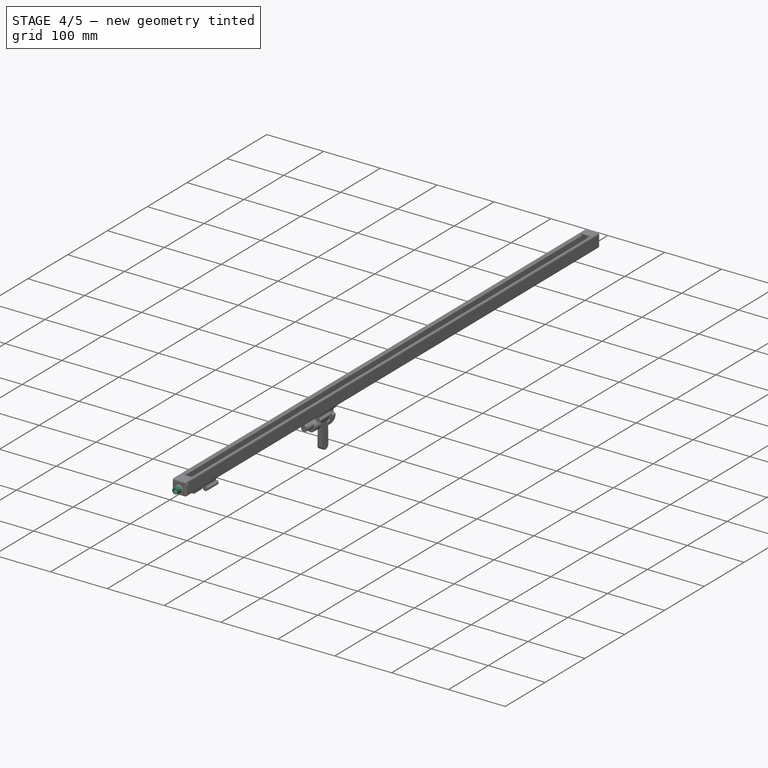
[diagram: stage 4 of 5 — iso view after this stage's code; geometry added in this stage tinted green]
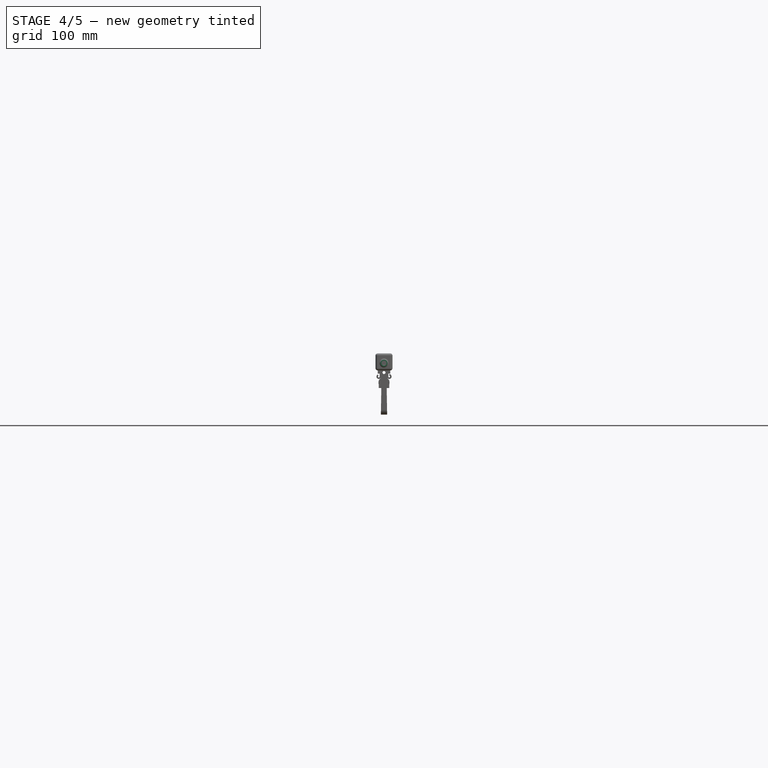
[diagram: stage 4 of 5 — front view after this stage's code; geometry added in this stage tinted green]
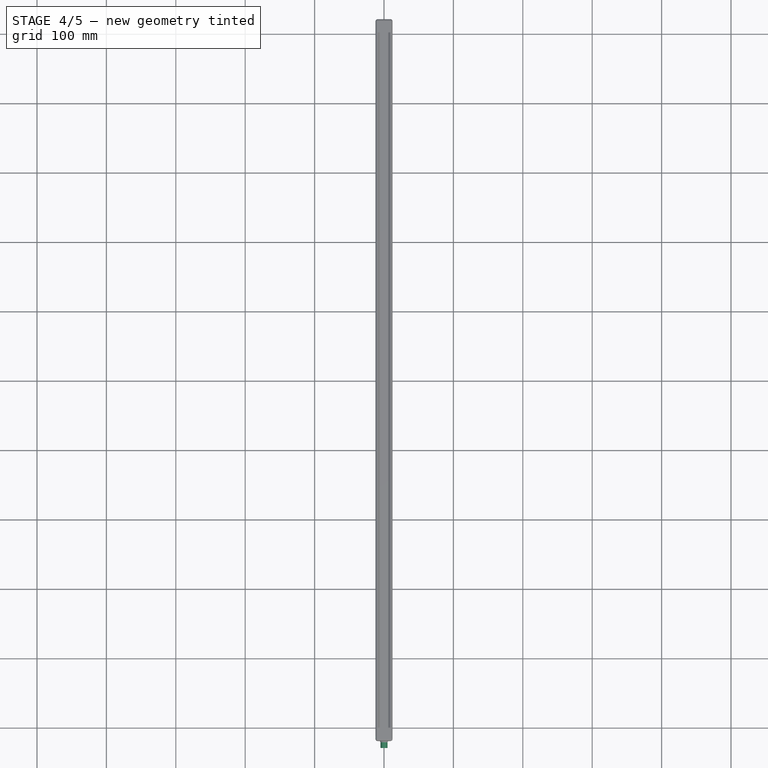
[diagram: stage 4 of 5 — top view after this stage's code; geometry added in this stage tinted green]
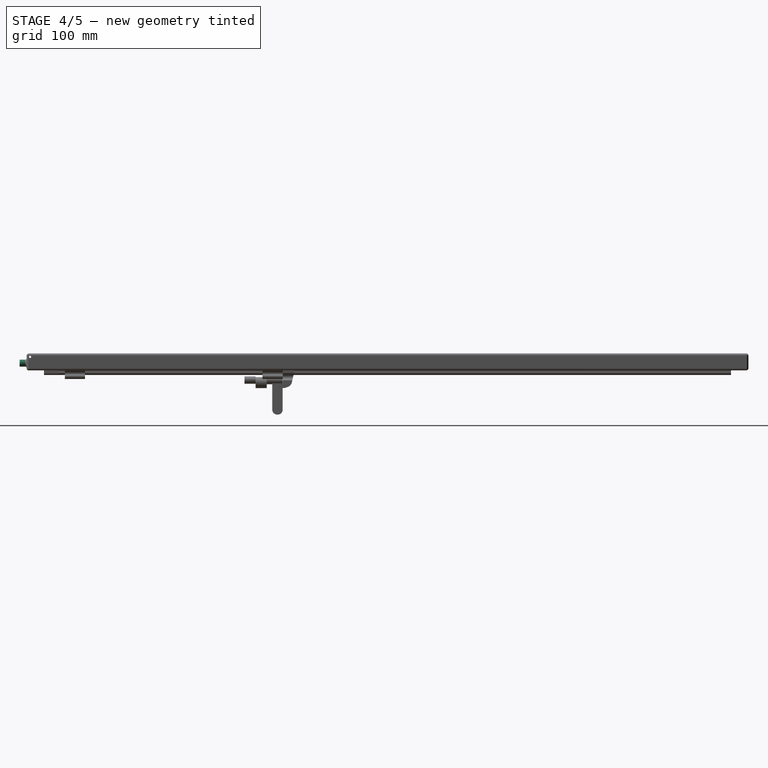
[diagram: stage 4 of 5 — right view after this stage's code; geometry added in this stage tinted green]
FEATURE [PartDesign::FeatureBase] BaseFeature  label="bfFusion"
  BaseFeature = -> Fusion
FEATURE [Sketcher::SketchObject] Sketch023  label="skCableHoleExt"
  AttachmentOffset = pos=(0,0,520) rot=(0,0,1;0rad)
  FullyConstrained = true
  MapMode = 5
  Placement = pos=(0,-520,-1.15e-13) rot=(1,0,0;1.5708rad)
  sketch-geometry (1):
    g0: Circle CenterX=0 CenterY=-13 CenterZ=0 NormalX=0 NormalY=0 NormalZ=1 AngleXU=0 Radius=5
  constraints (3):
    c: PointOnObject(g0,g-2)
    c: Diameter(g0) = 10
    c: Distance(g-1,g0) = 13
FEATURE [Sketcher::SketchObject] Sketch024  label="skCableHoleInt"
  AttachmentOffset = pos=(0,0,530) rot=(0,0,1;0rad)
  FullyConstrained = true
  MapMode = 5
  Placement = pos=(0,-530,-1.18e-13) rot=(1,0,0;1.5708rad)
  sketch-geometry (1):
    g0: Circle CenterX=0 CenterY=-13 CenterZ=0 NormalX=0 NormalY=0 NormalZ=1 AngleXU=0 Radius=3.5
  constraints (3):
    c: PointOnObject(g0,g-2)
    c: Distance(g-1,g0) = 13
    c: Diameter(g0) = 7
FEATURE [PartDesign::Pad] Pad016  label="pdCableHole"
  BaseFeature = -> BaseFeature
  Direction = (0,-1,2e-16)
  Length = 10
  Length2 = 10
  Profile = -> Sketch023
  ReferenceAxis = -> Sketch023 [N_Axis]
  Type = 0
FEATURE [PartDesign::Pocket] Pocket003  label="pkCableHole"
  BaseFeature = -> Pad016
  Direction = (0,1,-2e-16)
  Length = 17
  Length2 = 5
  Profile = -> Sketch024
  ReferenceAxis = -> Sketch024 [N_Axis]
  Type = 0
FEATURE [PartDesign::Fillet] Fillet001  label="flCableHole"
  Base = -> Pocket003 [Edge5]
  BaseFeature = -> Pocket003
  Radius = 2
  SupportTransform = false
  UseAllEdges = false
FEATURE [Sketcher::SketchObject] Sketch032  label="skHalfFixer"
  AttachmentOffset = pos=(0,0,475) rot=(0,0,1;0rad)
  FullyConstrained = true
  MapMode = 5
  Placement = pos=(0,-475,-1.055e-13) rot=(1,0,0;1.5708rad)
  Support = -> [XZ_Plane007]
  sketch-geometry (4):
    g0: LineSegment StartX=-9 StartY=-28.2 StartZ=0 EndX=-9 EndY=-23.2 EndZ=0
    g1: LineSegment StartX=9 StartY=-23.2 StartZ=0 EndX=9 EndY=-28.2 EndZ=0
    g2: LineSegment StartX=-9 StartY=-23.2 StartZ=0 EndX=9 EndY=-23.2 EndZ=0
    g3: LineSegment StartX=9 StartY=-28.2 StartZ=0 EndX=-9 EndY=-28.2 EndZ=0
  constraints (11):
    c: Vertical(g0)
    c: Distance(g0) = 5
    c: Vertical(g1)
    c: Coincident(g2,g0)
    c: Coincident(g2,g1)
    c: Distance(g-1,g2) = 23.2
    c: Distance(g2) = 18
    c: Horizontal(g3)
    c: Symmetric(g1,g0,g-2)
    c: Coincident(g1,g3)
    c: Coincident(g0,g3)
FEATURE [Sketcher::SketchObject] Sketch033  label="skCableHoleSkrew"
  ExternalGeometry = -> [Fillet001]
  FullyConstrained = true
  MapMode = 5
  Placement = pos=(0,0,0) rot=(0.57735,0.57735,0.57735;2.0944rad)
  Support = -> [YZ_Plane006]
  sketch-geometry (2):
    g0: Circle CenterX=-515 CenterY=-4.05 CenterZ=0 NormalX=0 NormalY=0 NormalZ=1 AngleXU=0 Radius=4
    g1: Circle CenterX=-515 CenterY=-4.05 CenterZ=0 NormalX=0 NormalY=0 NormalZ=1 AngleXU=0 Radius=5
  constraints (5):
    c: Diameter(g0) = 8
    c: Coincident(g1,g0)
    c: Tangent(g1,g-3)
    c: Tangent(g1,g-4)
    c: Radius(g1) = 5
FEATURE [PartDesign::Pad] Pad022  label="pdCableHoleSkrew"
  BaseFeature = -> Fillet001
  Direction = (1,-2e-16,3e-16)
  Length = 19
  Length2 = 10
  Midplane = true
  Profile = -> Sketch033
  ReferenceAxis = -> Sketch033 [N_Axis]
  Type = 0
FEATURE [Sketcher::SketchObject] Sketch034  label="skCableHoleSkrewHole"
  ExternalGeometry = -> [Sketch033]
  FullyConstrained = true
  MapMode = 5
  Placement = pos=(0,0,0) rot=(0.57735,0.57735,0.57735;2.0944rad)
  Support = -> [YZ_Plane006]
  sketch-geometry (1):
    g0: Circle CenterX=-515 CenterY=-4.05 CenterZ=0 NormalX=0 NormalY=0 NormalZ=1 AngleXU=0 Radius=1.6
  constraints (2):
    c: Coincident(g0,g-3)
    c: Diameter(g0) = 3.2
FEATURE [PartDesign::Pocket] Pocket006  label="pkCableHoleSkrew"
  BaseFeature = -> Pad022
  Direction = (-1,2e-16,-3e-16)
  Length = 5
  Length2 = 5
  Midplane = true
  Profile = -> Sketch034
  ReferenceAxis = -> Sketch034 [N_Axis]
  Type = 1
FEATURE [Sketcher::SketchObject] Sketch035
  ExternalGeometry = -> [Pocket006]
  FullyConstrained = true
  MapMode = 5
  Placement = pos=(-12.2,0,1.27e-14) rot=(0.57735,-0.57735,-0.57735;2.0944rad)
  Support = -> [Pocket006]
  sketch-geometry (1):
    g0: Circle CenterX=515 CenterY=-4.05 CenterZ=0 NormalX=0 NormalY=0 NormalZ=1 AngleXU=0 Radius=3.05
  constraints (2):
    c: Coincident(g0,g-3)
    c: Diameter(g0) = 6.1
FEATURE [PartDesign::Pocket] Pocket007
  BaseFeature = -> Pocket006
  Direction = (1,-1e-16,-1e-15)
  Length = 7
  Length2 = 5
  Profile = -> Sketch035
  ReferenceAxis = -> Sketch035 [N_Axis]
  Type = 0
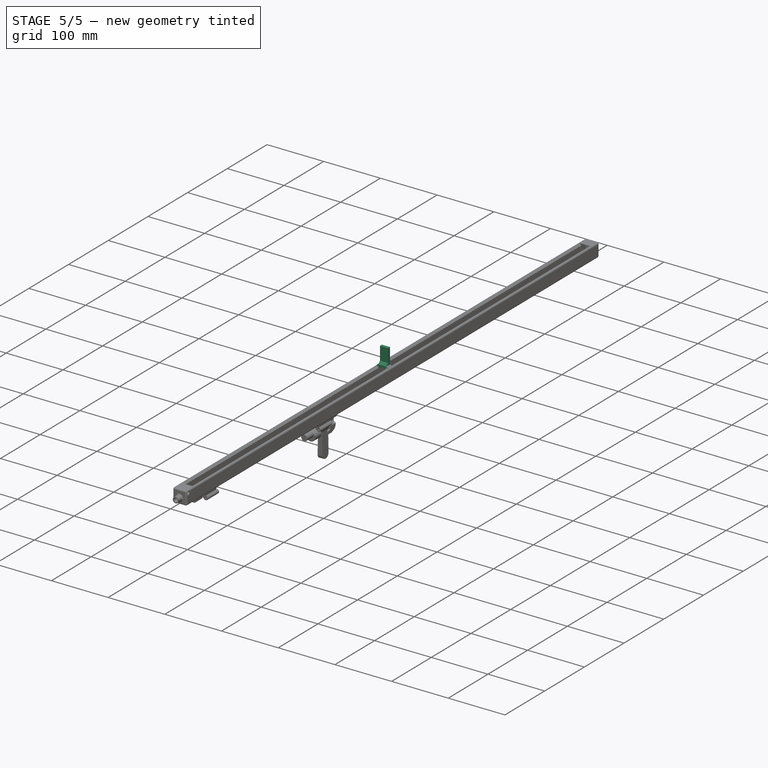
[diagram: stage 5 of 5 — iso view after this stage's code; geometry added in this stage tinted green]
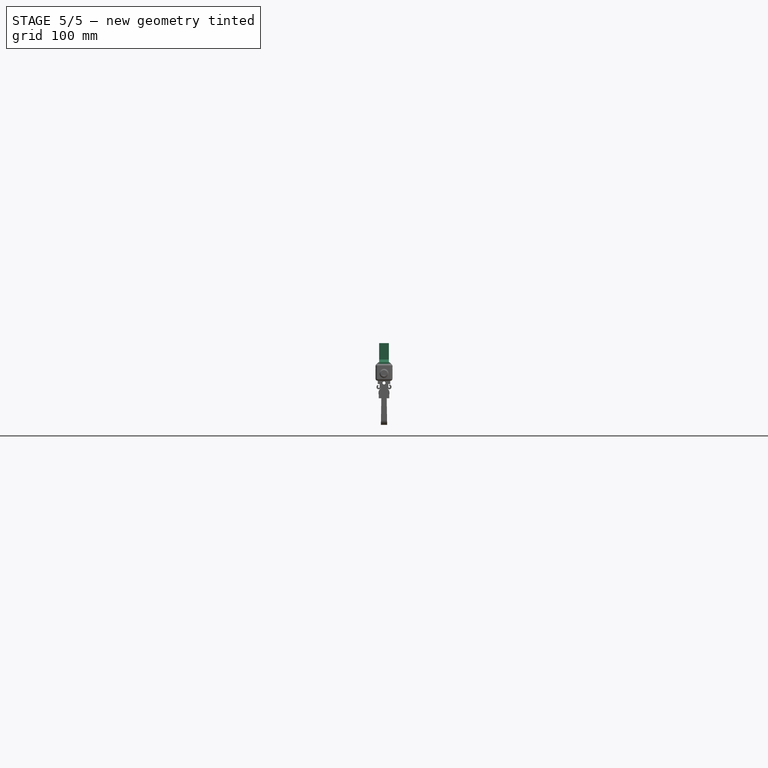
[diagram: stage 5 of 5 — front view after this stage's code; geometry added in this stage tinted green]
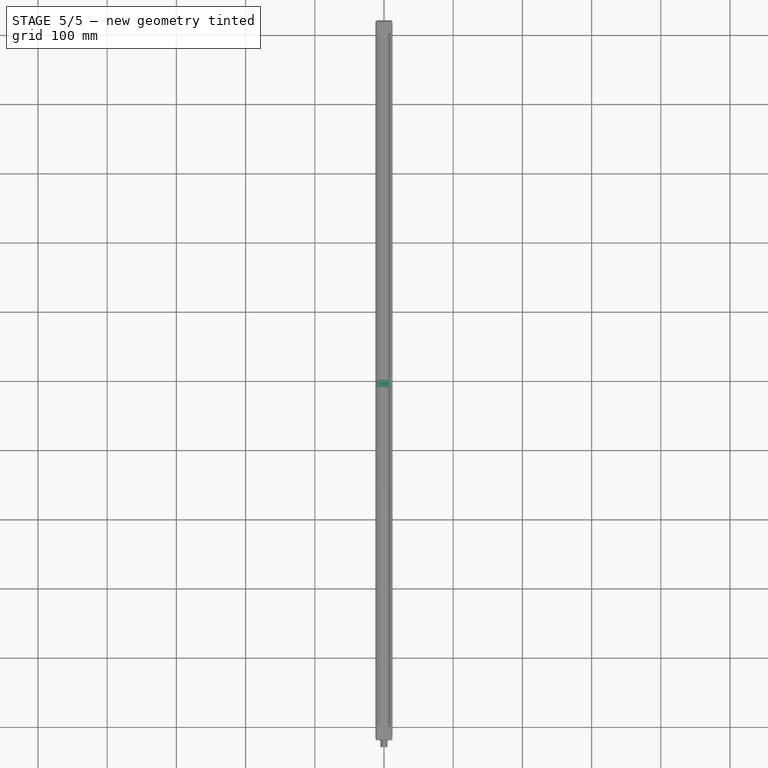
[diagram: stage 5 of 5 — top view after this stage's code; geometry added in this stage tinted green]
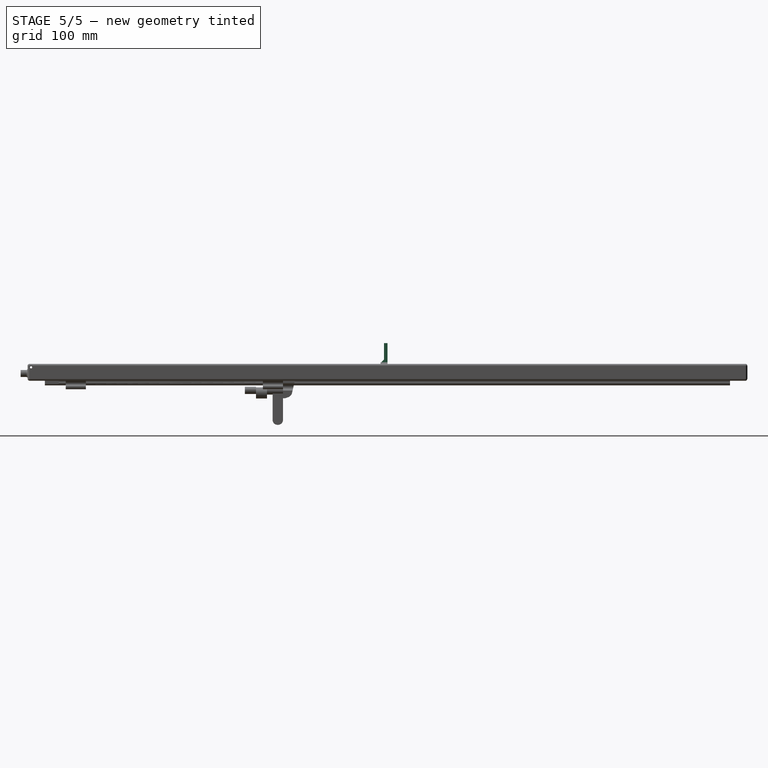
[diagram: stage 5 of 5 — right view after this stage's code; geometry added in this stage tinted green]
FEATURE [PartDesign::ShapeBinder] ShapeBinder  label="sbStrip02"
  Placement = pos=(0,0,0) rot=(1,0,0;1.5708rad)
  Support = -> [Sketch]
  TraceSupport = false
FEATURE [PartDesign::ShapeBinder] ShapeBinder004  label="sbProfile02"
  Placement = pos=(0,0,0) rot=(1,0,0;1.5708rad)
  Support = -> [Sketch015]
  TraceSupport = false
FEATURE [Sketcher::SketchObject] Sketch017  label="skBase"
  ExternalGeometry = -> [ShapeBinder,ShapeBinder004]
  FullyConstrained = true
  MapMode = 5
  Placement = pos=(0,0,0) rot=(1,0,0;1.5708rad)
  Support = -> [XZ_Plane]
  sketch-geometry (14):
    g0: ArcOfCircle CenterX=0 CenterY=-7.82857 CenterZ=0 NormalX=0 NormalY=0 NormalZ=1 AngleXU=0 Radius=8.12857 StartAngle=0.6058 EndAngle=2.53579
    g1: LineSegment StartX=6.68207 StartY=-3.2 StartZ=0 EndX=8.05 EndY=-3.2 EndZ=0
    g2: LineSegment StartX=-6.68207 StartY=-3.2 StartZ=0 EndX=-8.05 EndY=-3.2 EndZ=0
    g3: LineSegment StartX=-8.05 StartY=-3.2 StartZ=0 EndX=-8.05 EndY=-9.2 EndZ=0
    g4: LineSegment StartX=-8.05 StartY=-9.2 StartZ=0 EndX=-11.05 EndY=-9.2 EndZ=0
    g5: LineSegment StartX=-11.05 StartY=-9.2 StartZ=0 EndX=-11.05 EndY=3.3 EndZ=0
    g6: LineSegment StartX=-11.05 StartY=3.3 StartZ=0 EndX=11.05 EndY=3.3 EndZ=0
    g7: LineSegment StartX=11.05 StartY=3.3 StartZ=0 EndX=11.05 EndY=-9.2 EndZ=0
    g8: LineSegment StartX=11.05 StartY=-9.2 StartZ=0 EndX=8.05 EndY=-9.2 EndZ=0
    g9: LineSegment StartX=8.05 StartY=-9.2 StartZ=0 EndX=8.05 EndY=-3.2 EndZ=0
    g10: Circle CenterX=7.75 CenterY=-3.5 CenterZ=0 NormalX=0 NormalY=0 NormalZ=1 AngleXU=0 Radius=0.3
    g11: Circle CenterX=0 CenterY=0 CenterZ=0 NormalX=0 NormalY=0 NormalZ=1 AngleXU=0 Radius=0.3
    g12: Circle CenterX=6 CenterY=-2.8 CenterZ=0 NormalX=0 NormalY=0 NormalZ=1 AngleXU=0 Radius=0.3
    g13: LineSegment StartX=0 StartY=3.3 StartZ=0 EndX=0 EndY=0.3 EndZ=0
  constraints (40):
    c: PointOnObject(g0,g-2)
    c: Coincident(g1,g0)
    c: Horizontal(g1)
    c: Coincident(g2,g0)
    c: Horizontal(g2)
    c: Coincident(g2,g3)
    c: Vertical(g3)
    c: Coincident(g3,g4)
    c: Horizontal(g4)
    c: Coincident(g4,g5)
    c: Vertical(g5)
    c: Coincident(g5,g6)
    c: Horizontal(g6)
    c: Coincident(g6,g7)
    c: Vertical(g7)
    c: Coincident(g7,g8)
    c: Horizontal(g8)
    c: Coincident(g8,g9)
    c: Coincident(g9,g1)
    c: Vertical(g9)
    c: Coincident(g10,g-4)
    c: Tangent(g1,g10)
    c: Tangent(g9,g10)
    c: Tangent(g11,g0)
    c: Coincident(g11,g-1)
    c: Equal(g10,g11)
    c: Radius(g10) = 0.3
    c: Coincident(g12,g-3)
    c: Tangent(g12,g0)
    c: Equal(g12,g10)
    c: Symmetric(g2,g1,g-2)
    c: Horizontal(g8,g3)
    c: Distance(g9) = 6
    c: Equal(g4,g8)
    c: Distance(g4) = 3
    c: PointOnObject(g13,g6)
    c: PointOnObject(g13,g0)
    c: PointOnObject(g13,g-2)
    c: PointOnObject(g13,g-2)
    c: Equal(g13,g8)
FEATURE [PartDesign::Pad] Pad  label="pdBase"
  Direction = (0,-1,2e-16)
  Length = 10
  Length2 = 10
  Placement = pos=(0,0,0) rot=(1,0,0;1.5708rad)
  Profile = -> Sketch017
  ReferenceAxis = -> Sketch017 [N_Axis]
  Type = 0
FEATURE [PartDesign::Chamfer] Chamfer  label="chBase"
  Angle = 45
  Base = -> Pad [Edge17,Edge14]
  BaseFeature = -> Pad
  ChamferType = 0
  FlipDirection = false
  Placement = pos=(0,0,0) rot=(1,0,0;1.5708rad)
  Size = 3
  Size2 = 1
  SupportTransform = false
  UseAllEdges = false
FEATURE [Sketcher::SketchObject] Sketch018  label="skHandle"
  FullyConstrained = false
  MapMode = 5
  Placement = pos=(0,0,0) rot=(1,0,0;1.5708rad)
  Support = -> [XZ_Plane]
  sketch-geometry (4):
    g0: LineSegment StartX=7.03876 StartY=2.72129 StartZ=0 EndX=-7.03876 EndY=2.72129 EndZ=0
    g1: LineSegment StartX=-7.03876 StartY=2.72129 StartZ=0 EndX=-7.03876 EndY=30.8011 EndZ=0
    g2: LineSegment StartX=-7.03876 StartY=30.8011 StartZ=0 EndX=7.03876 EndY=30.8011 EndZ=0
    g3: LineSegment StartX=7.03876 StartY=30.8011 StartZ=0 EndX=7.03876 EndY=2.72129 EndZ=0
  constraints (8):
    c: Coincident(g0,g1)
    c: Coincident(g1,g2)
    c: Coincident(g2,g3)
    c: Coincident(g3,g0)
    c: Horizontal(g0)
    c: Vertical(g1)
    c: Vertical(g3)
    c: Symmetric(g2,g1,g-2)
FEATURE [PartDesign::Pad] Pad009  label="pdHandle"
  BaseFeature = -> Chamfer
  Direction = (0,-1,2e-16)
  Length = 5
  Length2 = 10
  Placement = pos=(0,0,0) rot=(1,0,0;1.5708rad)
  Profile = -> Sketch018
  ReferenceAxis = -> Sketch018 [N_Axis]
  Refine = true
  Type = 0
FEATURE [PartDesign::Chamfer] Chamfer001  label="chHandle"
  Angle = 45
  Base = -> Pad009 [Edge38]
  BaseFeature = -> Pad009
  ChamferType = 0
  FlipDirection = false
  Placement = pos=(0,0,0) rot=(1,0,0;1.5708rad)
  Size = 4
  Size2 = 1
  SupportTransform = false
  UseAllEdges = false
FEATURE [Sketcher::SketchObject] Sketch036
  ExternalGeometry = -> [Pocket007]
  FullyConstrained = true
  MapMode = 5
  Placement = pos=(12.2,0,-1.1e-15) rot=(0.57735,0.57735,0.57735;2.0944rad)
  Support = -> [Pocket007]
  sketch-geometry (7):
    g0: LineSegment StartX=-511.478 StartY=-4.05 StartZ=0 EndX=-513.239 EndY=-1 EndZ=0
    g1: LineSegment StartX=-513.239 StartY=-1 StartZ=0 EndX=-516.761 EndY=-1 EndZ=0
    g2: LineSegment StartX=-516.761 StartY=-1 StartZ=0 EndX=-518.522 EndY=-4.05 EndZ=0
    g3: LineSegment StartX=-518.522 StartY=-4.05 StartZ=0 EndX=-516.761 EndY=-7.1 EndZ=0
    g4: LineSegment StartX=-516.761 StartY=-7.1 StartZ=0 EndX=-513.239 EndY=-7.1 EndZ=0
    g5: LineSegment StartX=-513.239 StartY=-7.1 StartZ=0 EndX=-511.478 EndY=-4.05 EndZ=0
    g6: Circle CenterX=-515 CenterY=-4.05 CenterZ=0 NormalX=0 NormalY=0 NormalZ=1 AngleXU=0 Radius=3.52184
  constraints (16):
    c: Coincident(g0,g1)
    c: Coincident(g1,g2)
    c: Coincident(g2,g3)
    c: Coincident(g3,g4)
    c: Coincident(g4,g5)
    c: Coincident(g5,g0)
    c: Equal(g0, g1-g5) x5
    c: PointOnObject(g0,g6)
    c: PointOnObject(g1,g6)
    c: PointOnObject(g2,g6)
    c: PointOnObject(g3,g6)
    c: PointOnObject(g4,g6)
    c: PointOnObject(g5,g6)
    c: Coincident(g6,g-3)
    c: Distance(g2,g0) = 6.1
    c: Horizontal(g1)
FEATURE [PartDesign::Pocket] Pocket008
  BaseFeature = -> Pocket007
  Direction = (-1,0,0)
  Length = 7
  Length2 = 5
  Profile = -> Sketch036
  ReferenceAxis = -> Sketch036 [N_Axis]
  Type = 0
FEATURE [PartDesign::Chamfer] Chamfer003
  Angle = 45
  Base = -> Pocket008 [Edge35]
  BaseFeature = -> Pocket008
  ChamferType = 0
  FlipDirection = false
  Size = 1.3
  Size2 = 1
  SupportTransform = false
  UseAllEdges = false
FEATURE [PartDesign::Body] Body007  label="Scratch"
  Group = -> [Sketch026,Sketch027,Pad017,Sketch028,Pocket004,Sketch031,Pad020,Pocket009,Sketch039,Sketch032,Pad021,Pocket005,Sketch040,Pocket010,Fillet003,Fillet004]
  Origin = -> Origin007
  Tip = -> Fillet004
FEATURE [Part::MultiFuse] Fusion001  label="Body"
  Refine = true
  Shapes = -> [Body006,Body007]
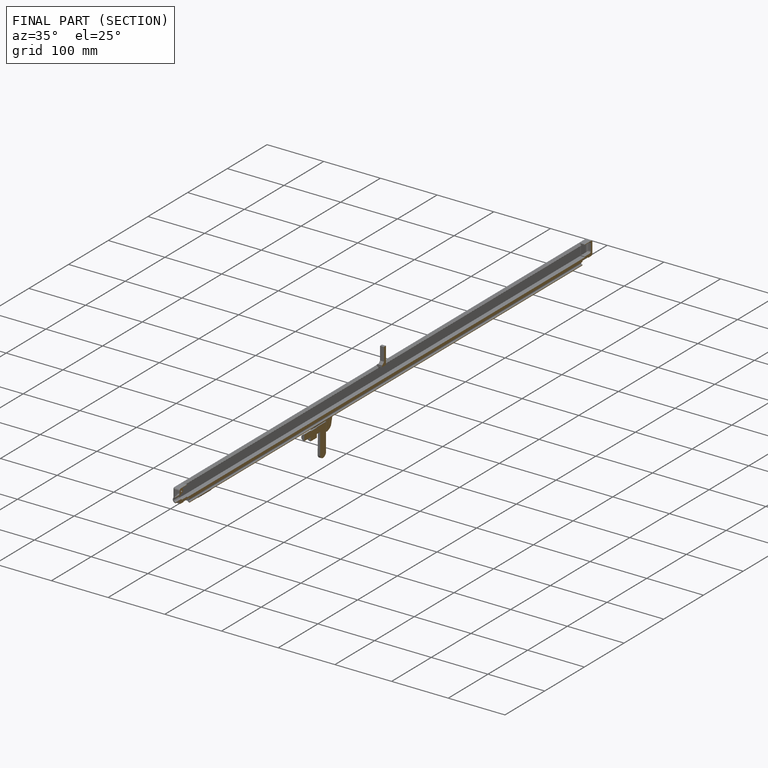
[diagram: finished part — half-section view (interior)]
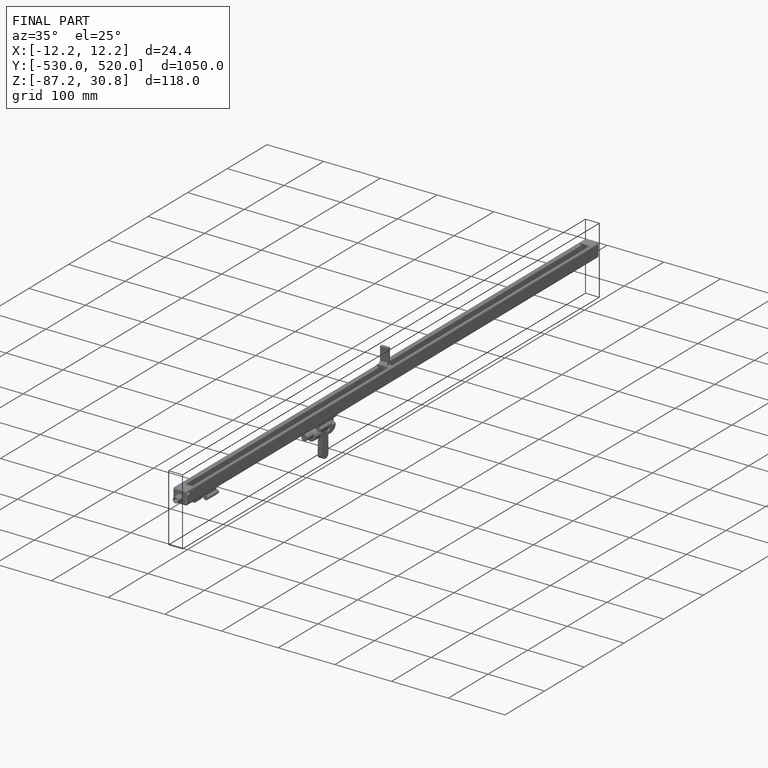
[diagram: finished part — iso view with bounding-box wireframe]
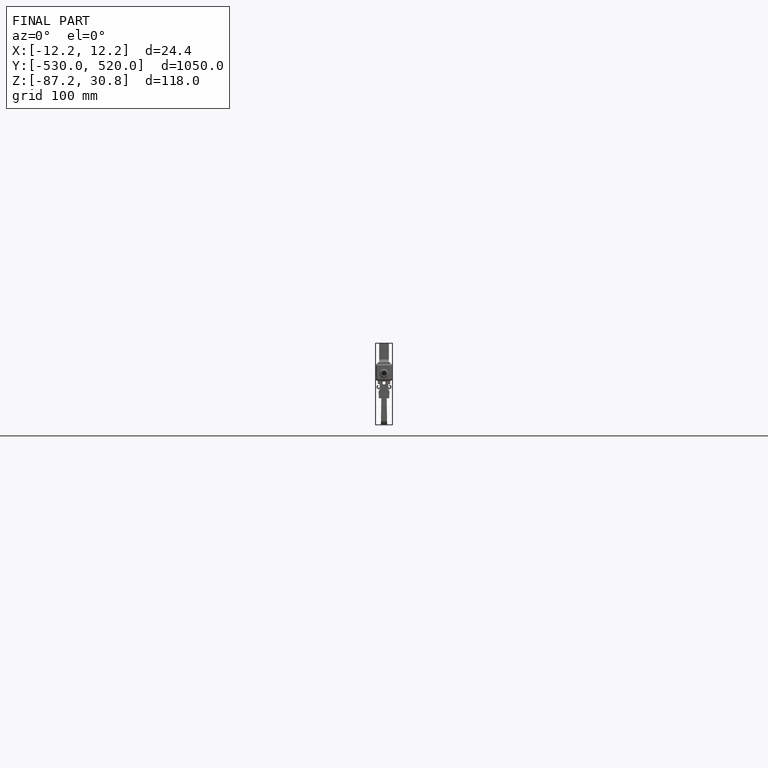
[diagram: finished part — front view with bounding-box wireframe]
